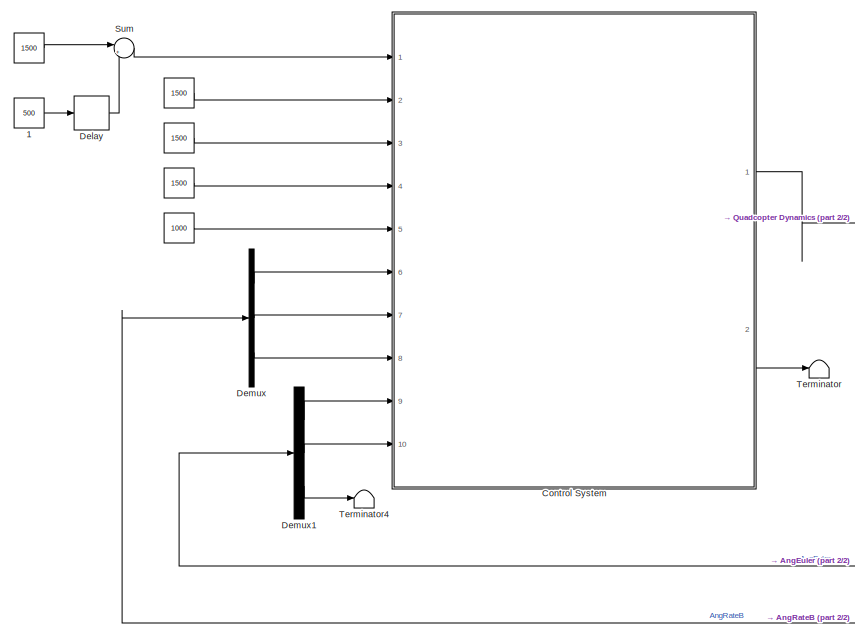
[diagram: root canvas - part 1/2, left side, full height]
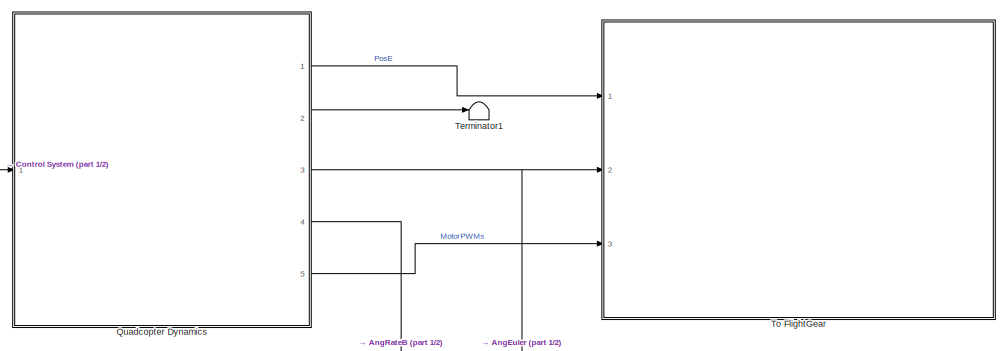
[diagram: root canvas - part 2/2, middle right region]
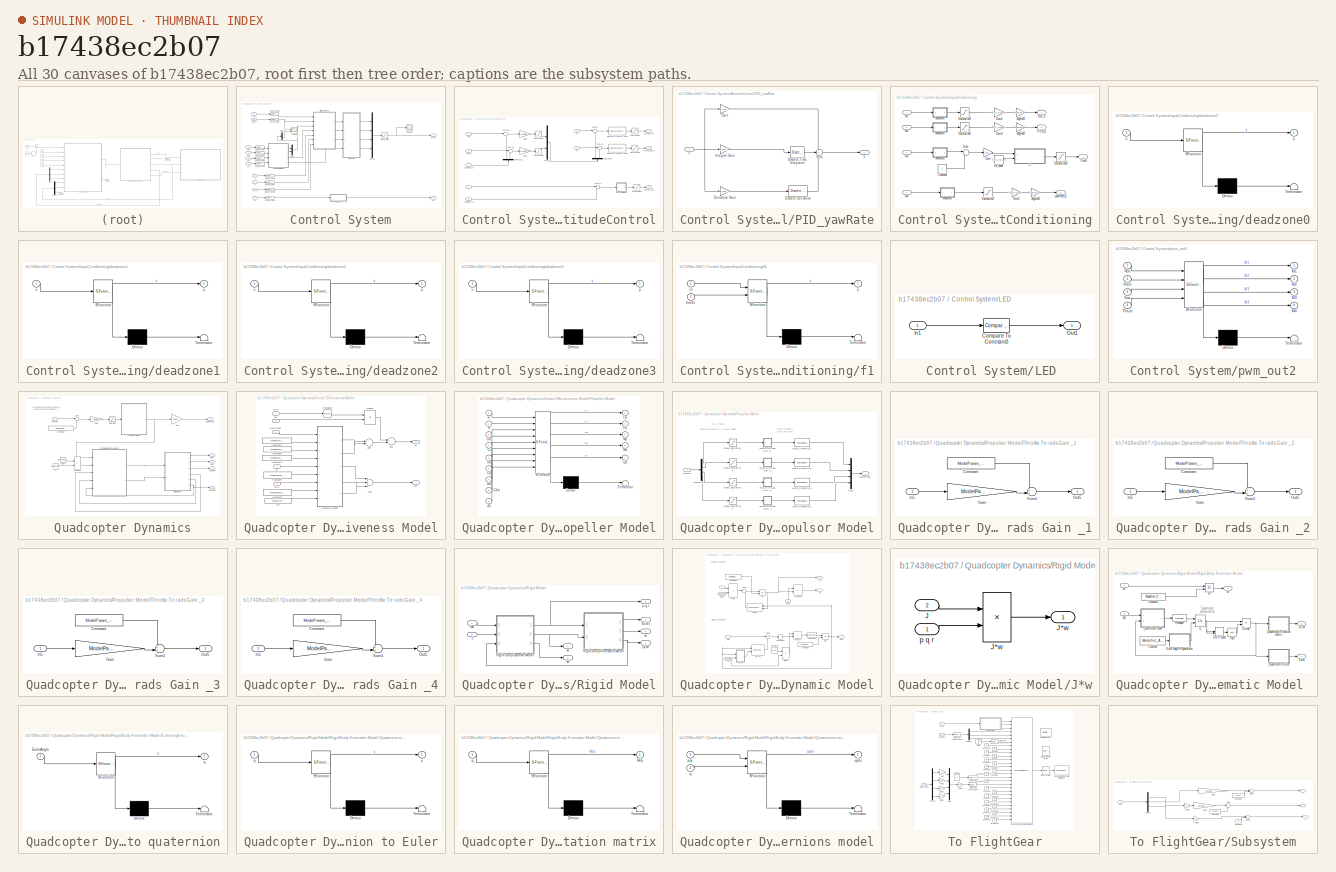
[diagram: thumbnail index - all 30 canvases of the model, root first then tree order]
MODEL slx_b17438ec2b07
KIND model
CONFIG AbsTol = auto
CONFIG EnableMultiTasking = off
CONFIG FixedStep = 0.001
CONFIG MaxStep = auto
CONFIG MinStep = auto
CONFIG RelTol = 1e-3
CONFIG SampleTimeConstraint = Unconstrained
CONFIG Solver = ode4
CONFIG SolverName = ode4
CONFIG StartTime = 0.0
CONFIG StopTime = 10
BLOCK [Constant]  
  OutDataTypeStr = uint16
  Value = 1000
BLOCK [Constant]   
  OutDataTypeStr = uint16
  Value = 1500
BLOCK [Constant]    
  OutDataTypeStr = uint16
  Value = 1500
BLOCK [Constant]       
  OutDataTypeStr = uint16
  Value = 1500
BLOCK [Constant]           
  OutDataTypeStr = uint16
  Value = 1500
BLOCK [Constant]   1
  OutDataTypeStr = uint16
  Value = 500
BLOCK [SubSystem] Control System
  Ports = [10, 2]
  RequestExecContextInheritance = off
  Variant = off
BLOCK [SubSystem] Control System/AttitudeControl
  Ports = [7, 3]
  RequestExecContextInheritance = off
  Variant = off
BLOCK [Demux] Control System/AttitudeControl/Demux12
  DisplayOption = bar
  Outputs = 2
  Ports = [1, 2]
BLOCK [Demux] Control System/AttitudeControl/Demux16
  DisplayOption = bar
  Outputs = 2
  Ports = [1, 2]
BLOCK [DiscreteTransferFcn] Control System/AttitudeControl/Discrete Transfer Fcn2
  Denominator = [1 -0.9997]
  InputPortMap = u0
  Numerator = [0.03248 -0.03223]
  Ports = [1, 1]
BLOCK [DiscreteTransferFcn] Control System/AttitudeControl/Discrete Transfer Fcn3
  Denominator = [1 -0.9997]
  InputPortMap = u0
  Numerator = [0.03248 -0.03223]
  Ports = [1, 1]
BLOCK [Gain] Control System/AttitudeControl/Gain1
  Gain = 5.0119
  OutDataTypeStr = Inherit: Inherit via internal rule
  ParamDataTypeStr = Inherit: Inherit via internal rule
  SaturateOnIntegerOverflow = off
BLOCK [Gain] Control System/AttitudeControl/Gain2
  Gain = 5.0119
  OutDataTypeStr = Inherit: Inherit via internal rule
  ParamDataTypeStr = Inherit: Inherit via internal rule
  SaturateOnIntegerOverflow = off
BLOCK [Mux] Control System/AttitudeControl/Mux22
  DisplayOption = bar
  Inputs = 2
  Ports = [2, 1]
BLOCK [SubSystem] Control System/AttitudeControl/PID_yawRate
  Ports = [1, 1]
  RequestExecContextInheritance = off
  Variant = off
BLOCK [Gain] Control System/AttitudeControl/PID_yawRate/Derivative Gain
  DisableCoverage = on
  Gain = Kd_YAW_AngleRate
  OutDataTypeStr = Inherit: Inherit via internal rule
  OutMax = 100
  OutMin = -100
  ParamDataTypeStr = Inherit: Inherit via internal rule
  ParamMax = 100
  ParamMin = -100
  SaturateOnIntegerOverflow = off
BLOCK [Reference] Control System/AttitudeControl/PID_yawRate/Discrete Derivative  REF=simulink/Discrete/Discrete Derivative
  Ports = [1, 1]
  SourceBlock = simulink/Discrete/Discrete Derivative
  SourceProductBaseCode = SL
  SourceProductName = Simulink
  SourceType = Discrete Derivative
BLOCK [DiscreteIntegrator] Control System/AttitudeControl/PID_yawRate/Discrete-Time Integrator
  ICPrevOutput = DiscIntNeverNeededParam
  ICPrevScaledInput = DiscIntNeverNeededParam
  InitialConditionSetting = State (most efficient)
  LimitOutput = on
  LowerSaturationLimit = Saturation_I_Y_Min
  Ports = [1, 1]
  SampleTime = -1
  UpperSaturationLimit = Saturation_I_Y_Max
BLOCK [Gain] Control System/AttitudeControl/PID_yawRate/Gain
  Gain = Kp_YAW_AngleRate
  OutDataTypeStr = Inherit: Inherit via internal rule
  ParamDataTypeStr = Inherit: Inherit via internal rule
  SaturateOnIntegerOverflow = off
BLOCK [Gain] Control System/AttitudeControl/PID_yawRate/Integral Gain
  DisableCoverage = on
  Gain = Ki_YAW_AngleRate
  OutDataTypeStr = Inherit: Inherit via internal rule
  ParamDataTypeStr = Inherit: Inherit via internal rule
  SaturateOnIntegerOverflow = off
BLOCK [Sum] Control System/AttitudeControl/PID_yawRate/Sum
  IconShape = round
  InputSameDT = off
  Inputs = +++
  OutDataTypeStr = Inherit: Inherit via internal rule
  Ports = [3, 1]
  SaturateOnIntegerOverflow = off
BLOCK [Inport] Control System/AttitudeControl/PID_yawRate/x
  IconDisplay = Port number
BLOCK [Outport] Control System/AttitudeControl/PID_yawRate/y
  IconDisplay = Port number
  InitialOutput = 0
BLOCK [Saturate] Control System/AttitudeControl/Saturation
  InputPortMap = u0
  LowerLimit = -1
  Ports = [1, 1]
  UpperLimit = 1
BLOCK [Saturate] Control System/AttitudeControl/Saturation1
  InputPortMap = u0
  LowerLimit = -1
  Ports = [1, 1]
  UpperLimit = 1
BLOCK [Saturate] Control System/AttitudeControl/Saturation2
  InputPortMap = u0
  Ports = [1, 1]
BLOCK [Saturate] Control System/AttitudeControl/Saturation3
  InputPortMap = u0
  LowerLimit = -MAX_CONTROL_ANGLE_RATE_PITCH
  Ports = [1, 1]
  UpperLimit = MAX_CONTROL_ANGLE_RATE_PITCH
BLOCK [Saturate] Control System/AttitudeControl/Saturation4
  InputPortMap = u0
  LowerLimit = -MAX_CONTROL_ANGLE_RATE_ROLL
  Ports = [1, 1]
  UpperLimit = MAX_CONTROL_ANGLE_RATE_ROLL
BLOCK [Sum] Control System/AttitudeControl/Sum17
  IconShape = round
  InputSameDT = off
  Inputs = |-+
  OutDataTypeStr = Inherit: Inherit via internal rule
  Ports = [2, 1]
  SaturateOnIntegerOverflow = off
BLOCK [Sum] Control System/AttitudeControl/Sum18
  IconShape = round
  InputSameDT = off
  Inputs = |-+
  OutDataTypeStr = Inherit: Inherit via internal rule
  Ports = [2, 1]
  SaturateOnIntegerOverflow = off
BLOCK [Sum] Control System/AttitudeControl/Sum19
  IconShape = round
  InputSameDT = off
  Inputs = |-+
  OutDataTypeStr = Inherit: Inherit via internal rule
  Ports = [2, 1]
  SaturateOnIntegerOverflow = off
BLOCK [Sum] Control System/AttitudeControl/Sum21
  IconShape = round
  InputSameDT = off
  Inputs = |-+
  OutDataTypeStr = Inherit: Inherit via internal rule
  Ports = [2, 1]
  SaturateOnIntegerOverflow = off
BLOCK [Sum] Control System/AttitudeControl/Sum22
  IconShape = round
  InputSameDT = off
  Inputs = |-+
  OutDataTypeStr = Inherit: Inherit via internal rule
  Ports = [2, 1]
  SaturateOnIntegerOverflow = off
BLOCK [Inport] Control System/AttitudeControl/p
  IconDisplay = Port number
  Port = 5
BLOCK [Inport] Control System/AttitudeControl/phi
  IconDisplay = Port number
BLOCK [Inport] Control System/AttitudeControl/q
  IconDisplay = Port number
  Port = 6
BLOCK [Inport] Control System/AttitudeControl/r
  IconDisplay = Port number
  Port = 7
BLOCK [Inport] Control System/AttitudeControl/roll_pitch_d
  IconDisplay = Port number
  Port = 3
BLOCK [Inport] Control System/AttitudeControl/theta
  IconDisplay = Port number
  Port = 2
BLOCK [Outport] Control System/AttitudeControl/torque_pitch
  IconDisplay = Port number
  Port = 2
BLOCK [Outport] Control System/AttitudeControl/torque_roll
  IconDisplay = Port number
BLOCK [Outport] Control System/AttitudeControl/torque_yaw
  IconDisplay = Port number
  Port = 3
BLOCK [Inport] Control System/AttitudeControl/yawRate_d
  IconDisplay = Port number
  Port = 4
BLOCK [DataTypeConversion] Control System/Conversion1
  OutDataTypeStr = double
  RndMeth = Floor
  SaturateOnIntegerOverflow = off
BLOCK [DataTypeConversion] Control System/Conversion10
  OutDataTypeStr = double
  RndMeth = Floor
  SaturateOnIntegerOverflow = off
BLOCK [DataTypeConversion] Control System/Conversion2
  OutDataTypeStr = double
  RndMeth = Floor
  SaturateOnIntegerOverflow = off
BLOCK [DataTypeConversion] Control System/Conversion3
  OutDataTypeStr = double
  RndMeth = Floor
  SaturateOnIntegerOverflow = off
BLOCK [DataTypeConversion] Control System/Conversion4
  OutDataTypeStr = double
  RndMeth = Floor
  SaturateOnIntegerOverflow = off
BLOCK [DataTypeConversion] Control System/Conversion5
  OutDataTypeStr = double
  RndMeth = Floor
  SaturateOnIntegerOverflow = off
BLOCK [DataTypeConversion] Control System/Conversion6
  OutDataTypeStr = double
  RndMeth = Floor
  SaturateOnIntegerOverflow = off
BLOCK [DataTypeConversion] Control System/Conversion7
  OutDataTypeStr = double
  RndMeth = Floor
  SaturateOnIntegerOverflow = off
BLOCK [DataTypeConversion] Control System/Conversion8
  OutDataTypeStr = double
  RndMeth = Floor
  SaturateOnIntegerOverflow = off
BLOCK [DataTypeConversion] Control System/Conversion9
  OutDataTypeStr = double
  RndMeth = Floor
  SaturateOnIntegerOverflow = off
BLOCK [Demux] Control System/Demux
  DisplayOption = bar
  Outputs = 2
  Ports = [1, 2]
BLOCK [SubSystem] Control System/InputConditioning
  Ports = [4, 4]
  RequestExecContextInheritance = off
  Variant = off
BLOCK [Constant] Control System/InputConditioning/Constant
BLOCK [Gain] Control System/InputConditioning/Gain
  Gain = 0.5
  OutDataTypeStr = Inherit: Inherit via internal rule
  ParamDataTypeStr = Inherit: Inherit via internal rule
  SaturateOnIntegerOverflow = off
BLOCK [Gain] Control System/InputConditioning/Gain1
  Gain = MAX_CONTROL_ANGLE_ROLL
  OutDataTypeStr = Inherit: Inherit via back propagation
  ParamDataTypeStr = Inherit: Inherit via internal rule
  SaturateOnIntegerOverflow = off
BLOCK [Gain] Control System/InputConditioning/Gain2
  Gain = MAX_CONTROL_ANGLE_RATE_Y
  OutDataTypeStr = Inherit: Inherit via internal rule
  ParamDataTypeStr = Inherit: Inherit via internal rule
  SaturateOnIntegerOverflow = off
BLOCK [Gain] Control System/InputConditioning/Gain3
  Gain = MAX_CONTROL_ANGLE_PITCH
  OutDataTypeStr = Inherit: Inherit via back propagation
  ParamDataTypeStr = Inherit: Inherit via internal rule
  SaturateOnIntegerOverflow = off
BLOCK [Outport] Control System/InputConditioning/Pitch_d
  IconDisplay = Port number
  Port = 2
BLOCK [Outport] Control System/InputConditioning/Roll_d
  IconDisplay = Port number
BLOCK [Saturate] Control System/InputConditioning/Saturation10
  InputPortMap = u0
  LowerLimit = 0
  Ports = [1, 1]
  UpperLimit = 1
BLOCK [Saturate] Control System/InputConditioning/Saturation7
  InputPortMap = u0
  LowerLimit = -1
  Ports = [1, 1]
  UpperLimit = 1
BLOCK [Saturate] Control System/InputConditioning/Saturation8
  InputPortMap = u0
  LowerLimit = -1
  Ports = [1, 1]
  UpperLimit = 1
BLOCK [Saturate] Control System/InputConditioning/Saturation9
  InputPortMap = u0
  LowerLimit = -1
  Ports = [1, 1]
  UpperLimit = 1
BLOCK [Sum] Control System/InputConditioning/Sum
  IconShape = round
  InputSameDT = off
  Inputs = |++
  OutDataTypeStr = Inherit: Inherit via internal rule
  Ports = [2, 1]
  SaturateOnIntegerOverflow = off
BLOCK [Outport] Control System/InputConditioning/Thrust
  IconDisplay = Port number
  Port = 4
BLOCK [Inport] Control System/InputConditioning/ch1 
  IconDisplay = Port number
BLOCK [Inport] Control System/InputConditioning/ch2
  IconDisplay = Port number
  Port = 2
BLOCK [Inport] Control System/InputConditioning/ch3
  IconDisplay = Port number
  Port = 3
BLOCK [Inport] Control System/InputConditioning/ch4
  IconDisplay = Port number
  Port = 4
BLOCK [SubSystem] Control System/InputConditioning/deadzone0
  ErrorFcn = Stateflow.Translate.translate
  PermitHierarchicalResolution = ExplicitOnly
  Ports = [1, 1]
  RequestExecContextInheritance = off
  SFBlockType = MATLAB Function
  TreatAsAtomicUnit = on
  Variant = off
BLOCK [Demux] Control System/InputConditioning/deadzone0/ Demux 
  Outputs = 1
  Ports = [1, 1]
BLOCK [S-Function] Control System/InputConditioning/deadzone0/ SFunction 
  EnableBusSupport = on
  FunctionName = sf_sfun
  PortCounts = [1 2]
  Ports = [1, 2]
  SFcnIsStateOwnerBlock = off
  SFunctionDeploymentMode = off
  Tag = Stateflow S-Function AttitudeControl_Sim 1
BLOCK [Terminator] Control System/InputConditioning/deadzone0/ Terminator 
BLOCK [Inport] Control System/InputConditioning/deadzone0/u
  IconDisplay = Port number
BLOCK [Outport] Control System/InputConditioning/deadzone0/y
  IconDisplay = Port number
BLOCK [SubSystem] Control System/InputConditioning/deadzone1
  ErrorFcn = Stateflow.Translate.translate
  PermitHierarchicalResolution = ExplicitOnly
  Ports = [1, 1]
  RequestExecContextInheritance = off
  SFBlockType = MATLAB Function
  TreatAsAtomicUnit = on
  Variant = off
BLOCK [Demux] Control System/InputConditioning/deadzone1/ Demux 
  Outputs = 1
  Ports = [1, 1]
BLOCK [S-Function] Control System/InputConditioning/deadzone1/ SFunction 
  EnableBusSupport = on
  FunctionName = sf_sfun
  PortCounts = [1 2]
  Ports = [1, 2]
  SFcnIsStateOwnerBlock = off
  SFunctionDeploymentMode = off
  Tag = Stateflow S-Function AttitudeControl_Sim 2
BLOCK [Terminator] Control System/InputConditioning/deadzone1/ Terminator 
BLOCK [Inport] Control System/InputConditioning/deadzone1/u
  IconDisplay = Port number
BLOCK [Outport] Control System/InputConditioning/deadzone1/y
  IconDisplay = Port number
BLOCK [SubSystem] Control System/InputConditioning/deadzone2
  ErrorFcn = Stateflow.Translate.translate
  PermitHierarchicalResolution = ExplicitOnly
  Ports = [1, 1]
  RequestExecContextInheritance = off
  SFBlockType = MATLAB Function
  TreatAsAtomicUnit = on
  Variant = off
BLOCK [Demux] Control System/InputConditioning/deadzone2/ Demux 
  Outputs = 1
  Ports = [1, 1]
BLOCK [S-Function] Control System/InputConditioning/deadzone2/ SFunction 
  EnableBusSupport = on
  FunctionName = sf_sfun
  PortCounts = [1 2]
  Ports = [1, 2]
  SFcnIsStateOwnerBlock = off
  SFunctionDeploymentMode = off
  Tag = Stateflow S-Function AttitudeControl_Sim 3
BLOCK [Terminator] Control System/InputConditioning/deadzone2/ Terminator 
BLOCK [Inport] Control System/InputConditioning/deadzone2/u
  IconDisplay = Port number
BLOCK [Outport] Control System/InputConditioning/deadzone2/y
  IconDisplay = Port number
BLOCK [SubSystem] Control System/InputConditioning/deadzone3
  ErrorFcn = Stateflow.Translate.translate
  PermitHierarchicalResolution = ExplicitOnly
  Ports = [1, 1]
  RequestExecContextInheritance = off
  SFBlockType = MATLAB Function
  TreatAsAtomicUnit = on
  Variant = off
BLOCK [Demux] Control System/InputConditioning/deadzone3/ Demux 
  Outputs = 1
  Ports = [1, 1]
BLOCK [S-Function] Control System/InputConditioning/deadzone3/ SFunction 
  EnableBusSupport = on
  FunctionName = sf_sfun
  PortCounts = [1 2]
  Ports = [1, 2]
  SFcnIsStateOwnerBlock = off
  SFunctionDeploymentMode = off
  Tag = Stateflow S-Function AttitudeControl_Sim 5
BLOCK [Terminator] Control System/InputConditioning/deadzone3/ Terminator 
BLOCK [Inport] Control System/InputConditioning/deadzone3/u
  IconDisplay = Port number
BLOCK [Outport] Control System/InputConditioning/deadzone3/y
  IconDisplay = Port number
BLOCK [Gain] Control System/InputConditioning/deg2rad1
  Gain = DEG2RAD
  OutDataTypeStr = Inherit: Inherit via internal rule
  ParamDataTypeStr = Inherit: Inherit via internal rule
  SaturateOnIntegerOverflow = off
BLOCK [Gain] Control System/InputConditioning/deg2rad2
  Gain = DEG2RAD
  OutDataTypeStr = Inherit: Inherit via internal rule
  ParamDataTypeStr = Inherit: Inherit via internal rule
  SaturateOnIntegerOverflow = off
BLOCK [Gain] Control System/InputConditioning/deg2rad3
  Gain = DEG2RAD
  OutDataTypeStr = Inherit: Inherit via internal rule
  ParamDataTypeStr = Inherit: Inherit via internal rule
  SaturateOnIntegerOverflow = off
BLOCK [SubSystem] Control System/InputConditioning/f1
  ErrorFcn = Stateflow.Translate.translate
  PermitHierarchicalResolution = ExplicitOnly
  Ports = [2, 1]
  RequestExecContextInheritance = off
  SFBlockType = MATLAB Function
  TreatAsAtomicUnit = on
  Variant = off
BLOCK [Demux] Control System/InputConditioning/f1/ Demux 
  Outputs = 1
  Ports = [1, 1]
BLOCK [S-Function] Control System/InputConditioning/f1/ SFunction 
  EnableBusSupport = on
  FunctionName = sf_sfun
  PortCounts = [2 2]
  Ports = [2, 2]
  SFcnIsStateOwnerBlock = off
  SFunctionDeploymentMode = off
  Tag = Stateflow S-Function AttitudeControl_Sim 32
BLOCK [Terminator] Control System/InputConditioning/f1/ Terminator 
BLOCK [Inport] Control System/InputConditioning/f1/hover
  IconDisplay = Port number
  Port = 2
BLOCK [Inport] Control System/InputConditioning/f1/in
  IconDisplay = Port number
BLOCK [Outport] Control System/InputConditioning/f1/y
  IconDisplay = Port number
BLOCK [Constant] Control System/InputConditioning/thr_hover 
  Value = THR_HOVER
BLOCK [Outport] Control System/InputConditioning/yawRate_d
  IconDisplay = Port number
  Port = 3
BLOCK [Outport] Control System/LED
  IconDisplay = Port number
  Port = 2
  PortDimensions = 1
  SamplingMode = Sample based
  SignalType = real
BLOCK [SubSystem] Control System/LED 
  Ports = [1, 1]
  RequestExecContextInheritance = off
  Variant = off
BLOCK [Reference] Control System/LED /Compare To Constant3  REF=simulink/Logic and Bit
Operations/Compare
To Constant
  Ports = [1, 1]
  SourceBlock = simulink/Logic and Bit\nOperations/Compare\nTo Constant
  SourceProductBaseCode = SL
  SourceProductName = Simulink
  SourceType = Compare To Constant
BLOCK [Inport] Control System/LED /In1
  IconDisplay = Port number
BLOCK [Outport] Control System/LED /Out1
  IconDisplay = Port number
BLOCK [Mux] Control System/Mux1
  DisplayOption = bar
  Inputs = 2
  Ports = [2, 1]
BLOCK [Mux] Control System/Mux12
  DisplayOption = bar
  Ports = [4, 1]
BLOCK [Saturate] Control System/Output_Limits1
  InputPortMap = u0
  LowerLimit = 1000
  Ports = [1, 1]
  UpperLimit = 2000
BLOCK [Outport] Control System/PWM
  IconDisplay = Port number
  SamplingMode = Sample based
  SignalType = real
BLOCK [Scope] Control System/Scope
  NumInputPorts = 2
  Ports = [2]
  ScopeSpecificationString = Simulink.scopes.TimeScopeBlockCfg('CurrentConfiguration', extmgr.ConfigurationSet(extmgr.Configuration('Core','General UI',true,'FigureColor',[1 1 1]),extmgr.Configuration('Core','Source UI',true),extmgr.Configuration('Sources','WiredSimulink',true,'DataLogging',true,'DataLoggingVariableName','pitchSim','DataLoggingSaveFormat','StructureWithTime'),extmgr.Configuration('Visuals','Time Domain',true,...<+1735ch>
BLOCK [Scope] Control System/Scope1
  NumInputPorts = 1
  Ports = [1]
  ScopeSpecificationString = Simulink.scopes.TimeScopeBlockCfg('CurrentConfiguration', extmgr.ConfigurationSet(extmgr.Configuration('Core','General UI',true,'FigureColor',[1 1 1]),extmgr.Configuration('Core','Source UI',true),extmgr.Configuration('Sources','WiredSimulink',true,'DataLoggingVariableName','ScopeData1'),extmgr.Configuration('Visuals','Time Domain',true,'SerializedDisplays',{struct('MinYLimReal','875.00000','MaxYL...<+1917ch>
BLOCK [Inport] Control System/ch1
  IconDisplay = Port number
  OutDataTypeStr = uint16
  PortDimensions = 1
  SamplingMode = Sample based
  SignalType = real
BLOCK [Inport] Control System/ch2
  IconDisplay = Port number
  OutDataTypeStr = uint16
  Port = 2
  PortDimensions = 1
  SamplingMode = Sample based
  SignalType = real
BLOCK [Inport] Control System/ch3
  IconDisplay = Port number
  OutDataTypeStr = uint16
  Port = 3
  PortDimensions = 1
  SamplingMode = Sample based
  SignalType = real
BLOCK [Inport] Control System/ch4
  IconDisplay = Port number
  OutDataTypeStr = uint16
  Port = 4
  PortDimensions = 1
  SamplingMode = Sample based
  SignalType = real
BLOCK [Inport] Control System/ch5
  IconDisplay = Port number
  Interpolate = off
  OutDataTypeStr = uint16
  Port = 5
  PortDimensions = 1
  SamplingMode = Sample based
  SignalType = real
BLOCK [Inport] Control System/p
  IconDisplay = Port number
  Port = 6
  PortDimensions = 1
  SamplingMode = Sample based
  SignalType = real
BLOCK [Inport] Control System/pitch
  IconDisplay = Port number
  Port = 10
  PortDimensions = 1
  SamplingMode = Sample based
  SignalType = real
BLOCK [SubSystem] Control System/pwm_out2
  ErrorFcn = Stateflow.Translate.translate
  PermitHierarchicalResolution = ExplicitOnly
  Ports = [4, 4]
  RequestExecContextInheritance = off
  SFBlockType = MATLAB Function
  SystemSampleTime = 0.004
  Variant = off
BLOCK [Demux] Control System/pwm_out2/ Demux 
  Outputs = 1
  Ports = [1, 1]
BLOCK [S-Function] Control System/pwm_out2/ SFunction 
  EnableBusSupport = on
  FunctionName = sf_sfun
  PortCounts = [4 5]
  Ports = [4, 5]
  SFcnIsStateOwnerBlock = off
  SFunctionDeploymentMode = off
  Tag = Stateflow S-Function AttitudeControl_Sim 14
BLOCK [Terminator] Control System/pwm_out2/ Terminator 
BLOCK [Outport] Control System/pwm_out2/M1
  IconDisplay = Port number
BLOCK [Outport] Control System/pwm_out2/M2
  IconDisplay = Port number
  Port = 2
BLOCK [Outport] Control System/pwm_out2/M3
  IconDisplay = Port number
  Port = 3
BLOCK [Outport] Control System/pwm_out2/M4
  IconDisplay = Port number
  Port = 4
BLOCK [Inport] Control System/pwm_out2/Pitch
  IconDisplay = Port number
  Port = 2
BLOCK [Inport] Control System/pwm_out2/Roll
  IconDisplay = Port number
BLOCK [Inport] Control System/pwm_out2/Thrust
  IconDisplay = Port number
  Port = 4
BLOCK [Inport] Control System/pwm_out2/Yaw
  IconDisplay = Port number
  Port = 3
BLOCK [Inport] Control System/q
  IconDisplay = Port number
  Port = 7
  PortDimensions = 1
  SamplingMode = Sample based
  SignalType = real
BLOCK [Inport] Control System/r
  IconDisplay = Port number
  Port = 8
  PortDimensions = 1
  SamplingMode = Sample based
  SignalType = real
BLOCK [Inport] Control System/roll
  IconDisplay = Port number
  Port = 9
  PortDimensions = 1
  SamplingMode = Sample based
  SignalType = real
BLOCK [Delay] Delay
  DelayLength = 1000
  InitialCondition = 0
  InputPortMap = u0
  Ports = [1, 1]
  SampleTime = 0.001
BLOCK [Demux] Demux
  DisplayOption = bar
  Outputs = 3
  Ports = [1, 3]
BLOCK [Demux] Demux1
  DisplayOption = bar
  Outputs = 3
  Ports = [1, 3]
BLOCK [SubSystem] Quadcopter Dynamics
  Ports = [1, 5]
  RequestExecContextInheritance = off
  Variant = off
BLOCK [Outport] Quadcopter Dynamics/AngEuler
  IconDisplay = Port number
  Port = 3
BLOCK [Outport] Quadcopter Dynamics/AngRateB
  IconDisplay = Port number
  Port = 4
BLOCK [Constant] Quadcopter Dynamics/Constant2
  Value = [1000,1000,1000,1000]
BLOCK [SubSystem] Quadcopter Dynamics/Control Effectiveness Model
  Ports = [5, 2]
  RequestExecContextInheritance = off
  Variant = off
BLOCK [Sum] Quadcopter Dynamics/Control Effectiveness Model/Add1
  InputSameDT = off
  Inputs = +++
  OutDataTypeStr = Inherit: Inherit via internal rule
  Ports = [3, 1]
  SaturateOnIntegerOverflow = off
BLOCK [Sum] Quadcopter Dynamics/Control Effectiveness Model/Add2
  InputSameDT = off
  OutDataTypeStr = Inherit: Inherit via internal rule
  Ports = [2, 1]
  SaturateOnIntegerOverflow = off
BLOCK [Sum] Quadcopter Dynamics/Control Effectiveness Model/Add7
  InputSameDT = off
  OutDataTypeStr = Inherit: Inherit via internal rule
  Ports = [2, 1]
  SaturateOnIntegerOverflow = off
BLOCK [Constant] Quadcopter Dynamics/Control Effectiveness Model/Constant1
  Value = ModelParam_uavCCm
BLOCK [Constant] Quadcopter Dynamics/Control Effectiveness Model/Constant3
  Value = ModelParam_rotorCt
BLOCK [Constant] Quadcopter Dynamics/Control Effectiveness Model/Constant4
  Value = ModelParam_rotorCm
BLOCK [Constant] Quadcopter Dynamics/Control Effectiveness Model/Constant5
  Value = ModelParam_uavR
BLOCK [Constant] Quadcopter Dynamics/Control Effectiveness Model/Constant7
  Value = ModelParam_uavCd
BLOCK [Inport] Quadcopter Dynamics/Control Effectiveness Model/DCM
  IconDisplay = Port number
  Port = 3
BLOCK [Outport] Quadcopter Dynamics/Control Effectiveness Model/Fb
  IconDisplay = Port number
  Port = 2
BLOCK [Constant] Quadcopter Dynamics/Control Effectiveness Model/Jrp
  Value = ModelParam_motorJm
BLOCK [Outport] Quadcopter Dynamics/Control Effectiveness Model/Mb
  IconDisplay = Port number
BLOCK [Inport] Quadcopter Dynamics/Control Effectiveness Model/MotorRads
  IconDisplay = Port number
BLOCK [Product] Quadcopter Dynamics/Control Effectiveness Model/Product
  InputSameDT = off
  Multiplication = Matrix(*)
  OutDataTypeStr = Inherit: Inherit via internal rule
  Ports = [2, 1]
  RndMeth = Floor
  SaturateOnIntegerOverflow = off
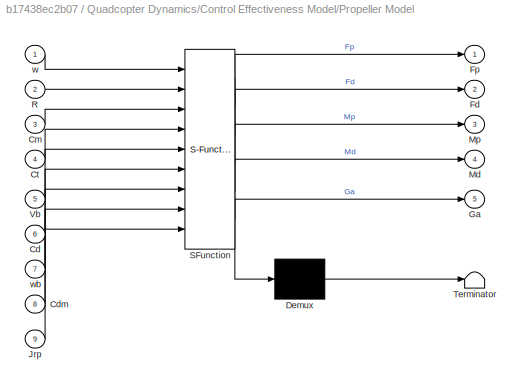
BLOCK [SubSystem] Quadcopter Dynamics/Control Effectiveness Model/Propeller Model
  ErrorFcn = Stateflow.Translate.translate
  PermitHierarchicalResolution = ExplicitOnly
  Ports = [9, 5]
  RequestExecContextInheritance = off
  SFBlockType = MATLAB Function
  TreatAsAtomicUnit = on
  Variant = off
BLOCK [Demux] Quadcopter Dynamics/Control Effectiveness Model/Propeller Model/ Demux 
  Outputs = 1
  Ports = [1, 1]
BLOCK [S-Function] Quadcopter Dynamics/Control Effectiveness Model/Propeller Model/ SFunction 
  EnableBusSupport = on
  FunctionName = sf_sfun
  PortCounts = [9 6]
  Ports = [9, 6]
  SFcnIsStateOwnerBlock = off
  SFunctionDeploymentMode = off
  Tag = Stateflow S-Function AttitudeControl_Sim 13
BLOCK [Terminator] Quadcopter Dynamics/Control Effectiveness Model/Propeller Model/ Terminator 
BLOCK [Inport] Quadcopter Dynamics/Control Effectiveness Model/Propeller Model/Cd
  IconDisplay = Port number
  Port = 6
BLOCK [Inport] Quadcopter Dynamics/Control Effectiveness Model/Propeller Model/Cdm
  IconDisplay = Port number
  Port = 8
BLOCK [Inport] Quadcopter Dynamics/Control Effectiveness Model/Propeller Model/Cm
  IconDisplay = Port number
  Port = 3
BLOCK [Inport] Quadcopter Dynamics/Control Effectiveness Model/Propeller Model/Ct
  IconDisplay = Port number
  Port = 4
BLOCK [Outport] Quadcopter Dynamics/Control Effectiveness Model/Propeller Model/Fd
  IconDisplay = Port number
  Port = 2
BLOCK [Outport] Quadcopter Dynamics/Control Effectiveness Model/Propeller Model/Fp
  IconDisplay = Port number
BLOCK [Outport] Quadcopter Dynamics/Control Effectiveness Model/Propeller Model/Ga
  IconDisplay = Port number
  Port = 5
BLOCK [Inport] Quadcopter Dynamics/Control Effectiveness Model/Propeller Model/Jrp
  IconDisplay = Port number
  Port = 9
BLOCK [Outport] Quadcopter Dynamics/Control Effectiveness Model/Propeller Model/Md
  IconDisplay = Port number
  Port = 4
BLOCK [Outport] Quadcopter Dynamics/Control Effectiveness Model/Propeller Model/Mp
  IconDisplay = Port number
  Port = 3
BLOCK [Inport] Quadcopter Dynamics/Control Effectiveness Model/Propeller Model/R
  IconDisplay = Port number
  Port = 2
BLOCK [Inport] Quadcopter Dynamics/Control Effectiveness Model/Propeller Model/Vb
  IconDisplay = Port number
  Port = 5
BLOCK [Inport] Quadcopter Dynamics/Control Effectiveness Model/Propeller Model/w
  IconDisplay = Port number
BLOCK [Inport] Quadcopter Dynamics/Control Effectiveness Model/Propeller Model/wb
  IconDisplay = Port number
  Port = 7
BLOCK [Math] Quadcopter Dynamics/Control Effectiveness Model/Transpose
  Operator = transpose
  Ports = [1, 1]
BLOCK [Inport] Quadcopter Dynamics/Control Effectiveness Model/Vb
  IconDisplay = Port number
  Port = 4
BLOCK [Inport] Quadcopter Dynamics/Control Effectiveness Model/mg
  IconDisplay = Port number
  Port = 2
BLOCK [Inport] Quadcopter Dynamics/Control Effectiveness Model/p.q,r
  IconDisplay = Port number
  Port = 5
BLOCK [Gain] Quadcopter Dynamics/Gain
  Gain = 30/pi
  OutDataTypeStr = Inherit: Inherit via internal rule
  ParamDataTypeStr = Inherit: Inherit via internal rule
  SaturateOnIntegerOverflow = off
BLOCK [Gain] Quadcopter Dynamics/Gain1
  Gain = 1/1000
  OutDataTypeStr = Inherit: Inherit via internal rule
  ParamDataTypeStr = Inherit: Inherit via internal rule
  SaturateOnIntegerOverflow = off
BLOCK [Outport] Quadcopter Dynamics/MotorRPMS
  IconDisplay = Port number
  Port = 5
BLOCK [Outport] Quadcopter Dynamics/PosE
  IconDisplay = Port number
BLOCK [Product] Quadcopter Dynamics/Product1
  InputSameDT = off
  OutDataTypeStr = Inherit: Inherit via internal rule
  Ports = [2, 1]
  RndMeth = Floor
  SaturateOnIntegerOverflow = off
BLOCK [SubSystem] Quadcopter Dynamics/Propulsor Model
  Ports = [1, 1]
  RequestExecContextInheritance = off
  Variant = off
BLOCK [Demux] Quadcopter Dynamics/Propulsor Model/Demux1
  DisplayOption = bar
  Ports = [1, 4]
BLOCK [Outport] Quadcopter Dynamics/Propulsor Model/MotorRads
  IconDisplay = Port number
BLOCK [StateSpace] Quadcopter Dynamics/Propulsor Model/Motor_Dynamics_1
  A = -1/ModelParam_motorT
  C = 1/ModelParam_motorT
  D = 0
  InitialCondition = ModelInit_Rads*ModelParam_motorT
  Ports = [1, 1]
BLOCK [StateSpace] Quadcopter Dynamics/Propulsor Model/Motor_Dynamics_2
  A = -1/ModelParam_motorT
  C = 1/ModelParam_motorT
  D = 0
  InitialCondition = ModelInit_Rads*ModelParam_motorT
  Ports = [1, 1]
BLOCK [StateSpace] Quadcopter Dynamics/Propulsor Model/Motor_Dynamics_3
  A = -1/ModelParam_motorT
  C = 1/ModelParam_motorT
  D = 0
  InitialCondition = ModelInit_Rads*ModelParam_motorT
  Ports = [1, 1]
BLOCK [StateSpace] Quadcopter Dynamics/Propulsor Model/Motor_Dynamics_4
  A = -1/ModelParam_motorT
  C = 1/ModelParam_motorT
  D = 0
  InitialCondition = ModelInit_Rads*ModelParam_motorT
  Ports = [1, 1]
BLOCK [Mux] Quadcopter Dynamics/Propulsor Model/Mux1
  DisplayOption = bar
  Ports = [4, 1]
BLOCK [Saturate] Quadcopter Dynamics/Propulsor Model/Signal_Saturation_1
  InputPortMap = u0
  LowerLimit = 0
  Ports = [1, 1]
  UpperLimit = 1
BLOCK [Saturate] Quadcopter Dynamics/Propulsor Model/Signal_Saturation_2
  InputPortMap = u0
  LowerLimit = 0
  Ports = [1, 1]
  UpperLimit = 1
BLOCK [Saturate] Quadcopter Dynamics/Propulsor Model/Signal_Saturation_3
  InputPortMap = u0
  LowerLimit = 0
  Ports = [1, 1]
  UpperLimit = 1
BLOCK [Saturate] Quadcopter Dynamics/Propulsor Model/Signal_Saturation_4
  InputPortMap = u0
  LowerLimit = 0
  Ports = [1, 1]
  UpperLimit = 1
BLOCK [SubSystem] Quadcopter Dynamics/Propulsor Model/Throttle To rads Gain _1
  Ports = [1, 1]
  RequestExecContextInheritance = off
  ShowPortLabels = none
  Variant = off
BLOCK [Constant] Quadcopter Dynamics/Propulsor Model/Throttle To rads Gain _1/Constant
  Value = ModelParam_motorWb
BLOCK [Gain] Quadcopter Dynamics/Propulsor Model/Throttle To rads Gain _1/Gain
  Gain = ModelParam_motorCr
  OutDataTypeStr = Inherit: Inherit via internal rule
  ParamDataTypeStr = Inherit: Inherit via internal rule
  SaturateOnIntegerOverflow = off
BLOCK [Inport] Quadcopter Dynamics/Propulsor Model/Throttle To rads Gain _1/In5
  IconDisplay = Port number
BLOCK [Outport] Quadcopter Dynamics/Propulsor Model/Throttle To rads Gain _1/Out5
  IconDisplay = Port number
BLOCK [Sum] Quadcopter Dynamics/Propulsor Model/Throttle To rads Gain _1/Sum1
  IconShape = round
  InputSameDT = off
  Inputs = ++|
  OutDataTypeStr = Inherit: Inherit via internal rule
  Ports = [2, 1]
  SaturateOnIntegerOverflow = off
BLOCK [SubSystem] Quadcopter Dynamics/Propulsor Model/Throttle To rads Gain _2
  Ports = [1, 1]
  RequestExecContextInheritance = off
  ShowPortLabels = none
  Variant = off
BLOCK [Constant] Quadcopter Dynamics/Propulsor Model/Throttle To rads Gain _2/Constant
  Value = ModelParam_motorWb
BLOCK [Gain] Quadcopter Dynamics/Propulsor Model/Throttle To rads Gain _2/Gain
  Gain = ModelParam_motorCr
  OutDataTypeStr = Inherit: Inherit via internal rule
  ParamDataTypeStr = Inherit: Inherit via internal rule
  SaturateOnIntegerOverflow = off
BLOCK [Inport] Quadcopter Dynamics/Propulsor Model/Throttle To rads Gain _2/In5
  IconDisplay = Port number
BLOCK [Outport] Quadcopter Dynamics/Propulsor Model/Throttle To rads Gain _2/Out5
  IconDisplay = Port number
BLOCK [Sum] Quadcopter Dynamics/Propulsor Model/Throttle To rads Gain _2/Sum1
  IconShape = round
  InputSameDT = off
  Inputs = ++|
  OutDataTypeStr = Inherit: Inherit via internal rule
  Ports = [2, 1]
  SaturateOnIntegerOverflow = off
BLOCK [SubSystem] Quadcopter Dynamics/Propulsor Model/Throttle To rads Gain _3
  Ports = [1, 1]
  RequestExecContextInheritance = off
  ShowPortLabels = none
  Variant = off
BLOCK [Constant] Quadcopter Dynamics/Propulsor Model/Throttle To rads Gain _3/Constant
  Value = ModelParam_motorWb
BLOCK [Gain] Quadcopter Dynamics/Propulsor Model/Throttle To rads Gain _3/Gain
  Gain = ModelParam_motorCr
  OutDataTypeStr = Inherit: Inherit via internal rule
  ParamDataTypeStr = Inherit: Inherit via internal rule
  SaturateOnIntegerOverflow = off
BLOCK [Inport] Quadcopter Dynamics/Propulsor Model/Throttle To rads Gain _3/In5
  IconDisplay = Port number
BLOCK [Outport] Quadcopter Dynamics/Propulsor Model/Throttle To rads Gain _3/Out5
  IconDisplay = Port number
BLOCK [Sum] Quadcopter Dynamics/Propulsor Model/Throttle To rads Gain _3/Sum1
  IconShape = round
  InputSameDT = off
  Inputs = ++|
  OutDataTypeStr = Inherit: Inherit via internal rule
  Ports = [2, 1]
  SaturateOnIntegerOverflow = off
BLOCK [SubSystem] Quadcopter Dynamics/Propulsor Model/Throttle To rads Gain _4
  Ports = [1, 1]
  RequestExecContextInheritance = off
  ShowPortLabels = none
  Variant = off
BLOCK [Constant] Quadcopter Dynamics/Propulsor Model/Throttle To rads Gain _4/Constant
  Value = ModelParam_motorWb
BLOCK [Gain] Quadcopter Dynamics/Propulsor Model/Throttle To rads Gain _4/Gain
  Gain = ModelParam_motorCr
  OutDataTypeStr = Inherit: Inherit via internal rule
  ParamDataTypeStr = Inherit: Inherit via internal rule
  SaturateOnIntegerOverflow = off
BLOCK [Inport] Quadcopter Dynamics/Propulsor Model/Throttle To rads Gain _4/In5
  IconDisplay = Port number
BLOCK [Outport] Quadcopter Dynamics/Propulsor Model/Throttle To rads Gain _4/Out5
  IconDisplay = Port number
BLOCK [Sum] Quadcopter Dynamics/Propulsor Model/Throttle To rads Gain _4/Sum1
  IconShape = round
  InputSameDT = off
  Inputs = ++|
  OutDataTypeStr = Inherit: Inherit via internal rule
  Ports = [2, 1]
  SaturateOnIntegerOverflow = off
BLOCK [Inport] Quadcopter Dynamics/Propulsor Model/inPWMs
  IconDisplay = Port number
BLOCK [SubSystem] Quadcopter Dynamics/Rigid Model
  Ports = [2, 6]
  RequestExecContextInheritance = off
  Variant = off
BLOCK [Outport] Quadcopter Dynamics/Rigid Model/DCM
  IconDisplay = Port number
  Port = 4
BLOCK [Outport] Quadcopter Dynamics/Rigid Model/Euler
  IconDisplay = Port number
  Port = 3
BLOCK [Inport] Quadcopter Dynamics/Rigid Model/Mb
  IconDisplay = Port number
BLOCK [SubSystem] Quadcopter Dynamics/Rigid Model/Rigid-Body Dynamic Model
  Ports = [3, 3]
  RequestExecContextInheritance = off
  Variant = off
BLOCK [Constant] Quadcopter Dynamics/Rigid Model/Rigid-Body Dynamic Model/ Mass 
  Value = ModelParam_uavMass
BLOCK [Constant] Quadcopter Dynamics/Rigid Model/Rigid-Body Dynamic Model/Constant
  Value = eye(3)
BLOCK [Constant] Quadcopter Dynamics/Rigid Model/Rigid-Body Dynamic Model/Constant1
  Value = ModelInit_RateB
BLOCK [Constant] Quadcopter Dynamics/Rigid Model/Rigid-Body Dynamic Model/Constant2
  Value = ModelInit_VelB
BLOCK [Inport] Quadcopter Dynamics/Rigid Model/Rigid-Body Dynamic Model/DCM
  IconDisplay = Port number
  Port = 3
BLOCK [Product] Quadcopter Dynamics/Rigid Model/Rigid-Body Dynamic Model/Divide
  InputSameDT = off
  Inputs = */
  Multiplication = Matrix(*)
  OutDataTypeStr = Inherit: Inherit via internal rule
  Ports = [2, 1]
  RndMeth = Floor
  SaturateOnIntegerOverflow = off
BLOCK [Constant] Quadcopter Dynamics/Rigid Model/Rigid-Body Dynamic Model/J 
  Value = ModelParam_uavJ
BLOCK [SubSystem] Quadcopter Dynamics/Rigid Model/Rigid-Body Dynamic Model/J*w
  Ports = [2, 1]
  RequestExecContextInheritance = off
  Variant = off
BLOCK [Inport] Quadcopter Dynamics/Rigid Model/Rigid-Body Dynamic Model/J*w/J
  IconDisplay = Port number
  Port = 2
BLOCK [Product] Quadcopter Dynamics/Rigid Model/Rigid-Body Dynamic Model/J*w/J*w
  InputSameDT = off
  Multiplication = Matrix(*)
  OutDataTypeStr = Inherit: Inherit via internal rule
  Ports = [2, 1]
  RndMeth = Floor
  SaturateOnIntegerOverflow = off
BLOCK [Outport] Quadcopter Dynamics/Rigid Model/Rigid-Body Dynamic Model/J*w/J*w 
  IconDisplay = Port number
BLOCK [Inport] Quadcopter Dynamics/Rigid Model/Rigid-Body Dynamic Model/J*w/p q r
  IconDisplay = Port number
BLOCK [Inport] Quadcopter Dynamics/Rigid Model/Rigid-Body Dynamic Model/Mb
  IconDisplay = Port number
BLOCK [Product] Quadcopter Dynamics/Rigid Model/Rigid-Body Dynamic Model/Product
  InputSameDT = off
  Multiplication = Matrix(*)
  OutDataTypeStr = Inherit: Inherit via internal rule
  Ports = [2, 1]
  RndMeth = Floor
  SaturateOnIntegerOverflow = off
BLOCK [Product] Quadcopter Dynamics/Rigid Model/Rigid-Body Dynamic Model/Product1
  InputSameDT = off
  Multiplication = Matrix(*)
  OutDataTypeStr = Inherit: Inherit via internal rule
  Ports = [2, 1]
  RndMeth = Floor
  SaturateOnIntegerOverflow = off
BLOCK [Reshape] Quadcopter Dynamics/Rigid Model/Rigid-Body Dynamic Model/Reshape
  OutputDimensionality = Customize
  OutputDimensions = [3,1]
  Ports = [1, 1]
BLOCK [Reshape] Quadcopter Dynamics/Rigid Model/Rigid-Body Dynamic Model/Reshape1
  OutputDimensionality = Column vector (2-D)
  Ports = [1, 1]
BLOCK [Sum] Quadcopter Dynamics/Rigid Model/Rigid-Body Dynamic Model/Sum1
  IconShape = round
  InputSameDT = off
  Inputs = |+-
  OutDataTypeStr = Inherit: Inherit via internal rule
  Ports = [2, 1]
  SaturateOnIntegerOverflow = off
BLOCK [Sum] Quadcopter Dynamics/Rigid Model/Rigid-Body Dynamic Model/Sum2
  IconShape = round
  InputSameDT = off
  Inputs = |+-
  OutDataTypeStr = Inherit: Inherit via internal rule
  Ports = [2, 1]
  SaturateOnIntegerOverflow = off
BLOCK [Product] Quadcopter Dynamics/Rigid Model/Rigid-Body Dynamic Model/a=f//m
  InputSameDT = off
  Inputs = */
  OutDataTypeStr = Inherit: Inherit via internal rule
  Ports = [2, 1]
  RndMeth = Floor
  SaturateOnIntegerOverflow = off
BLOCK [Inport] Quadcopter Dynamics/Rigid Model/Rigid-Body Dynamic Model/f
  IconDisplay = Port number
  Port = 2
BLOCK [Integrator] Quadcopter Dynamics/Rigid Model/Rigid-Body Dynamic Model/p,q,r
  InitialConditionSource = external
  Ports = [2, 1]
BLOCK [Outport] Quadcopter Dynamics/Rigid Model/Rigid-Body Dynamic Model/p,q,r 
  IconDisplay = Port number
BLOCK [Integrator] Quadcopter Dynamics/Rigid Model/Rigid-Body Dynamic Model/vb
  InitialConditionSource = external
  Ports = [2, 1]
BLOCK [Outport] Quadcopter Dynamics/Rigid Model/Rigid-Body Dynamic Model/vb 
  IconDisplay = Port number
  Port = 3
BLOCK [Outport] Quadcopter Dynamics/Rigid Model/Rigid-Body Dynamic Model/ve
  IconDisplay = Port number
  Port = 2
BLOCK [Reference] Quadcopter Dynamics/Rigid Model/Rigid-Body Dynamic Model/wx(Jw)  REF=sharedutil/3x3 Cross Product
  Ports = [2, 1]
  SourceBlock = sharedutil/3x3 Cross Product
  SourceProductBaseCode = AE
  SourceProductName = Aerospace Blockset
  SourceType = CrossProduct
BLOCK [Reference] Quadcopter Dynamics/Rigid Model/Rigid-Body Dynamic Model/wxVb  REF=sharedutil/3x3 Cross Product
  Ports = [2, 1]
  SourceBlock = sharedutil/3x3 Cross Product
  SourceProductBaseCode = AE
  SourceProductName = Aerospace Blockset
  SourceType = CrossProduct
BLOCK [SubSystem] Quadcopter Dynamics/Rigid Model/Rigid-Body Kinematic Model 
  Ports = [2, 3]
  RequestExecContextInheritance = off
  Variant = off
BLOCK [Constant] Quadcopter Dynamics/Rigid Model/Rigid-Body Kinematic Model /Constant
  Value = ModelInit_AngEuler
BLOCK [Constant] Quadcopter Dynamics/Rigid Model/Rigid-Body Kinematic Model /Constant1
  Value = ModelInit_PosE
BLOCK [Outport] Quadcopter Dynamics/Rigid Model/Rigid-Body Kinematic Model /DCM
  IconDisplay = Port number
  Port = 3
BLOCK [Product] Quadcopter Dynamics/Rigid Model/Rigid-Body Kinematic Model /Divide
  InputSameDT = off
  Inputs = */
  OutDataTypeStr = Inherit: Inherit via internal rule
  Ports = [2, 1]
  RndMeth = Floor
  SaturateOnIntegerOverflow = off
BLOCK [DotProduct] Quadcopter Dynamics/Rigid Model/Rigid-Body Kinematic Model /Dot Product
  OutDataTypeStr = Inherit: Inherit via internal rule
BLOCK [Outport] Quadcopter Dynamics/Rigid Model/Rigid-Body Kinematic Model /Euler
  IconDisplay = Port number
BLOCK [SubSystem] Quadcopter Dynamics/Rigid Model/Rigid-Body Kinematic Model /Euler angle to quaternion
  ErrorFcn = Stateflow.Translate.translate
  PermitHierarchicalResolution = ExplicitOnly
  Ports = [1, 1]
  RequestExecContextInheritance = off
  SFBlockType = MATLAB Function
  Variant = off
BLOCK [Demux] Quadcopter Dynamics/Rigid Model/Rigid-Body Kinematic Model /Euler angle to quaternion/ Demux 
  Outputs = 1
  Ports = [1, 1]
BLOCK [S-Function] Quadcopter Dynamics/Rigid Model/Rigid-Body Kinematic Model /Euler angle to quaternion/ SFunction 
  EnableBusSupport = on
  FunctionName = sf_sfun
  PortCounts = [1 2]
  Ports = [1, 2]
  SFcnIsStateOwnerBlock = off
  SFunctionDeploymentMode = off
  Tag = Stateflow S-Function AttitudeControl_Sim 11
BLOCK [Terminator] Quadcopter Dynamics/Rigid Model/Rigid-Body Kinematic Model /Euler angle to quaternion/ Terminator 
BLOCK [Inport] Quadcopter Dynamics/Rigid Model/Rigid-Body Kinematic Model /Euler angle to quaternion/EulerAngle
  IconDisplay = Port number
BLOCK [Outport] Quadcopter Dynamics/Rigid Model/Rigid-Body Kinematic Model /Euler angle to quaternion/q
  IconDisplay = Port number
BLOCK [SubSystem] Quadcopter Dynamics/Rigid Model/Rigid-Body Kinematic Model /Quaternion to Euler
  ErrorFcn = Stateflow.Translate.translate
  PermitHierarchicalResolution = ExplicitOnly
  Ports = [1, 1]
  RequestExecContextInheritance = off
  SFBlockType = MATLAB Function
  Variant = off
BLOCK [Demux] Quadcopter Dynamics/Rigid Model/Rigid-Body Kinematic Model /Quaternion to Euler/ Demux 
  Outputs = 1
  Ports = [1, 1]
BLOCK [S-Function] Quadcopter Dynamics/Rigid Model/Rigid-Body Kinematic Model /Quaternion to Euler/ SFunction 
  EnableBusSupport = on
  FunctionName = sf_sfun
  PortCounts = [1 2]
  Ports = [1, 2]
  SFcnIsStateOwnerBlock = off
  SFunctionDeploymentMode = off
  Tag = Stateflow S-Function AttitudeControl_Sim 9
BLOCK [Terminator] Quadcopter Dynamics/Rigid Model/Rigid-Body Kinematic Model /Quaternion to Euler/ Terminator 
BLOCK [Inport] Quadcopter Dynamics/Rigid Model/Rigid-Body Kinematic Model /Quaternion to Euler/q
  IconDisplay = Port number
BLOCK [Outport] Quadcopter Dynamics/Rigid Model/Rigid-Body Kinematic Model /Quaternion to Euler/y
  IconDisplay = Port number
BLOCK [SubSystem] Quadcopter Dynamics/Rigid Model/Rigid-Body Kinematic Model /Quaternion to rotation matrix
  ErrorFcn = Stateflow.Translate.translate
  PermitHierarchicalResolution = ExplicitOnly
  Ports = [1, 1]
  RequestExecContextInheritance = off
  SFBlockType = MATLAB Function
  Variant = off
BLOCK [Demux] Quadcopter Dynamics/Rigid Model/Rigid-Body Kinematic Model /Quaternion to rotation matrix/ Demux 
  Outputs = 1
  Ports = [1, 1]
BLOCK [S-Function] Quadcopter Dynamics/Rigid Model/Rigid-Body Kinematic Model /Quaternion to rotation matrix/ SFunction 
  EnableBusSupport = on
  FunctionName = sf_sfun
  PortCounts = [1 2]
  Ports = [1, 2]
  SFcnIsStateOwnerBlock = off
  SFunctionDeploymentMode = off
  Tag = Stateflow S-Function AttitudeControl_Sim 8
BLOCK [Terminator] Quadcopter Dynamics/Rigid Model/Rigid-Body Kinematic Model /Quaternion to rotation matrix/ Terminator 
BLOCK [Outport] Quadcopter Dynamics/Rigid Model/Rigid-Body Kinematic Model /Quaternion to rotation matrix/Reb
  IconDisplay = Port number
BLOCK [Inport] Quadcopter Dynamics/Rigid Model/Rigid-Body Kinematic Model /Quaternion to rotation matrix/q
  IconDisplay = Port number
BLOCK [SubSystem] Quadcopter Dynamics/Rigid Model/Rigid-Body Kinematic Model /Quaternions model
  ErrorFcn = Stateflow.Translate.translate
  PermitHierarchicalResolution = ExplicitOnly
  Ports = [2, 1]
  RequestExecContextInheritance = off
  SFBlockType = MATLAB Function
  TreatAsAtomicUnit = on
  Variant = off
BLOCK [Demux] Quadcopter Dynamics/Rigid Model/Rigid-Body Kinematic Model /Quaternions model/ Demux 
  Outputs = 1
  Ports = [1, 1]
BLOCK [S-Function] Quadcopter Dynamics/Rigid Model/Rigid-Body Kinematic Model /Quaternions model/ SFunction 
  EnableBusSupport = on
  FunctionName = sf_sfun
  PortCounts = [2 2]
  Ports = [2, 2]
  SFcnIsStateOwnerBlock = off
  SFunctionDeploymentMode = off
  Tag = Stateflow S-Function AttitudeControl_Sim 10
BLOCK [Terminator] Quadcopter Dynamics/Rigid Model/Rigid-Body Kinematic Model /Quaternions model/ Terminator 
BLOCK [Inport] Quadcopter Dynamics/Rigid Model/Rigid-Body Kinematic Model /Quaternions model/pqr
  IconDisplay = Port number
BLOCK [Inport] Quadcopter Dynamics/Rigid Model/Rigid-Body Kinematic Model /Quaternions model/q
  IconDisplay = Port number
  Port = 2
BLOCK [Outport] Quadcopter Dynamics/Rigid Model/Rigid-Body Kinematic Model /Quaternions model/qdot
  IconDisplay = Port number
BLOCK [Reshape] Quadcopter Dynamics/Rigid Model/Rigid-Body Kinematic Model /Reshape
  OutputDimensionality = Customize
  OutputDimensions = [4,1]
  Ports = [1, 1]
BLOCK [Sqrt] Quadcopter Dynamics/Rigid Model/Rigid-Body Kinematic Model /Sqrt
BLOCK [Inport] Quadcopter Dynamics/Rigid Model/Rigid-Body Kinematic Model /pqr
  IconDisplay = Port number
BLOCK [Integrator] Quadcopter Dynamics/Rigid Model/Rigid-Body Kinematic Model /q
  InitialConditionSource = external
  Ports = [2, 1]
BLOCK [Inport] Quadcopter Dynamics/Rigid Model/Rigid-Body Kinematic Model /ve
  IconDisplay = Port number
  Port = 2
BLOCK [Integrator] Quadcopter Dynamics/Rigid Model/Rigid-Body Kinematic Model /xe
  InitialConditionSource = external
  Ports = [2, 1]
BLOCK [Outport] Quadcopter Dynamics/Rigid Model/Rigid-Body Kinematic Model /xe 
  IconDisplay = Port number
  Port = 2
BLOCK [Inport] Quadcopter Dynamics/Rigid Model/f
  IconDisplay = Port number
  Port = 2
BLOCK [Outport] Quadcopter Dynamics/Rigid Model/p,q,r 
  IconDisplay = Port number
  Port = 6
BLOCK [Outport] Quadcopter Dynamics/Rigid Model/vb 
  IconDisplay = Port number
  Port = 5
BLOCK [Outport] Quadcopter Dynamics/Rigid Model/ve
  IconDisplay = Port number
  Port = 2
BLOCK [Outport] Quadcopter Dynamics/Rigid Model/xe 
  IconDisplay = Port number
BLOCK [Saturate] Quadcopter Dynamics/Saturation
  InputPortMap = u0
  LowerLimit = 0
  Ports = [1, 1]
  UpperLimit = 1
BLOCK [Sum] Quadcopter Dynamics/Sum
  IconShape = round
  InputSameDT = off
  Inputs = |+-
  OutDataTypeStr = Inherit: Inherit via internal rule
  Ports = [2, 1]
  SaturateOnIntegerOverflow = off
BLOCK [Outport] Quadcopter Dynamics/VelE
  IconDisplay = Port number
  Port = 2
BLOCK [Constant] Quadcopter Dynamics/g
  Value = [0,0,ModelParam_envGravityAcc]
BLOCK [Inport] Quadcopter Dynamics/inPWMs
  IconDisplay = Port number
BLOCK [Constant] Quadcopter Dynamics/mass
  Value = ModelParam_uavMass
BLOCK [Sum] Sum
  IconShape = round
  InputSameDT = off
  Inputs = |++
  OutDataTypeStr = Inherit: Inherit via internal rule
  Ports = [2, 1]
  SaturateOnIntegerOverflow = off
BLOCK [Terminator] Terminator
BLOCK [Terminator] Terminator1
BLOCK [Terminator] Terminator4
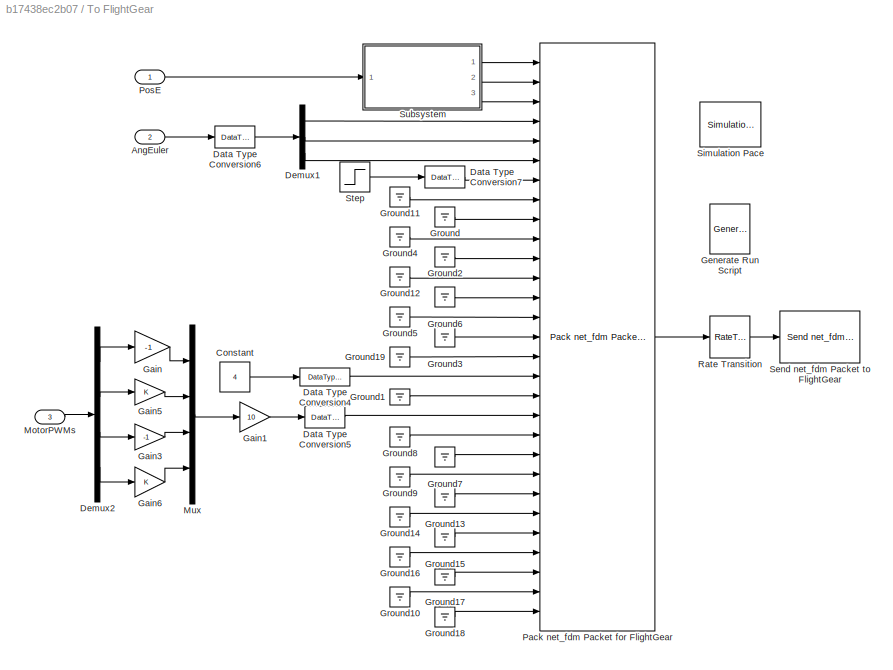
BLOCK [SubSystem] To FlightGear
  Ports = [3]
  RequestExecContextInheritance = off
  Variant = off
BLOCK [Inport] To FlightGear/AngEuler
  IconDisplay = Port number
  Port = 2
BLOCK [Constant] To FlightGear/Constant
  Value = 4
BLOCK [DataTypeConversion] To FlightGear/Data Type Conversion4
  OutDataTypeStr = uint32
  RndMeth = Floor
  SaturateOnIntegerOverflow = off
BLOCK [DataTypeConversion] To FlightGear/Data Type Conversion5
  OutDataTypeStr = single
  RndMeth = Floor
  SaturateOnIntegerOverflow = off
BLOCK [DataTypeConversion] To FlightGear/Data Type Conversion6
  OutDataTypeStr = single
  RndMeth = Floor
  SaturateOnIntegerOverflow = off
BLOCK [DataTypeConversion] To FlightGear/Data Type Conversion7
  OutDataTypeStr = single
  RndMeth = Floor
  SaturateOnIntegerOverflow = off
BLOCK [Demux] To FlightGear/Demux1
  DisplayOption = bar
  Outputs = 3
  Ports = [1, 3]
BLOCK [Demux] To FlightGear/Demux2
  DisplayOption = bar
  Ports = [1, 4]
BLOCK [Gain] To FlightGear/Gain
  Gain = -1
  OutDataTypeStr = Inherit: Inherit via internal rule
  ParamDataTypeStr = Inherit: Inherit via internal rule
  SaturateOnIntegerOverflow = off
BLOCK [Gain] To FlightGear/Gain1
  Gain = 10
  OutDataTypeStr = Inherit: Inherit via internal rule
  ParamDataTypeStr = Inherit: Inherit via internal rule
  SaturateOnIntegerOverflow = off
BLOCK [Gain] To FlightGear/Gain3
  Gain = -1
  OutDataTypeStr = Inherit: Inherit via internal rule
  ParamDataTypeStr = Inherit: Inherit via internal rule
  SaturateOnIntegerOverflow = off
BLOCK [Gain] To FlightGear/Gain5
  OutDataTypeStr = Inherit: Inherit via internal rule
  ParamDataTypeStr = Inherit: Inherit via internal rule
  SaturateOnIntegerOverflow = off
BLOCK [Gain] To FlightGear/Gain6
  OutDataTypeStr = Inherit: Inherit via internal rule
  ParamDataTypeStr = Inherit: Inherit via internal rule
  SaturateOnIntegerOverflow = off
BLOCK [Reference] To FlightGear/Generate Run Script  REF=aerolibfltsims/Generate
Run Script
  Ports = []
  SourceBlock = aerolibfltsims/Generate\nRun Script
  SourceProductBaseCode = AE
  SourceProductName = Aerospace Blockset
  SourceType = Generate FlightGear Run Script
BLOCK [Ground] To FlightGear/Ground
BLOCK [Ground] To FlightGear/Ground1
BLOCK [Ground] To FlightGear/Ground10
BLOCK [Ground] To FlightGear/Ground11
BLOCK [Ground] To FlightGear/Ground12
BLOCK [Ground] To FlightGear/Ground13
BLOCK [Ground] To FlightGear/Ground14
BLOCK [Ground] To FlightGear/Ground15
BLOCK [Ground] To FlightGear/Ground16
BLOCK [Ground] To FlightGear/Ground17
BLOCK [Ground] To FlightGear/Ground18
BLOCK [Ground] To FlightGear/Ground19
BLOCK [Ground] To FlightGear/Ground2
BLOCK [Ground] To FlightGear/Ground3
BLOCK [Ground] To FlightGear/Ground4
BLOCK [Ground] To FlightGear/Ground5
BLOCK [Ground] To FlightGear/Ground6
BLOCK [Ground] To FlightGear/Ground7
BLOCK [Ground] To FlightGear/Ground8
BLOCK [Ground] To FlightGear/Ground9
BLOCK [Inport] To FlightGear/MotorPWMs
  IconDisplay = Port number
  Port = 3
BLOCK [Mux] To FlightGear/Mux
  DisplayOption = bar
  Ports = [4, 1]
BLOCK [Reference] To FlightGear/Pack net_fdm Packet for FlightGear  REF=aerolibfltsims/Pack
net_fdm Packet
for FlightGear
  AttributesFormatString = Version Selected: %<FlightGearVersion>
  Ports = [29, 1]
  SourceBlock = aerolibfltsims/Pack\nnet_fdm Packet\nfor FlightGear
  SourceProductBaseCode = AE
  SourceProductName = Aerospace Blockset
  SourceType = FlightGearPackNetFdm
BLOCK [Inport] To FlightGear/PosE
  IconDisplay = Port number
BLOCK [RateTransition] To FlightGear/Rate Transition
BLOCK [Reference] To FlightGear/Send net_fdm Packet to FlightGear  REF=aerolibfltsims/Send
net_fdm Packet
to FlightGear
  Ports = [1]
  SourceBlock = aerolibfltsims/Send\nnet_fdm Packet\nto FlightGear
  SourceProductBaseCode = AE
  SourceProductName = Aerospace Blockset
  SourceType = FlightGearSendNetFdm
BLOCK [Reference] To FlightGear/Simulation Pace  REF=aerolibanimutils/Simulation Pace
  AttributesFormatString = %<SimulationPace> sec/sec
  Ports = []
  SourceBlock = aerolibanimutils/Simulation Pace
  SourceProductBaseCode = AE
  SourceProductName = Aerospace Blockset
  SourceType = Simulation Pace
BLOCK [Step] To FlightGear/Step
  SampleTime = 0
  Time = 0
BLOCK [SubSystem] To FlightGear/Subsystem
  Ports = [1, 3]
  RequestExecContextInheritance = off
  Variant = off
BLOCK [Constant] To FlightGear/Subsystem/Constant1
  Value = 5
  VectorParams1D = off
BLOCK [Constant] To FlightGear/Subsystem/Constant2
  Value = -2.1361
  VectorParams1D = off
BLOCK [Constant] To FlightGear/Subsystem/Constant3
  Value = 0.65673
  VectorParams1D = off
BLOCK [Demux] To FlightGear/Subsystem/Demux
  DisplayOption = bar
  Outputs = 3
  Ports = [1, 3]
BLOCK [Gain] To FlightGear/Subsystem/Gain1
  Gain = 10/earthRadius
  OutDataTypeStr = Inherit: Inherit via internal rule
  ParamDataTypeStr = Inherit: Inherit via internal rule
  SaturateOnIntegerOverflow = off
BLOCK [Gain] To FlightGear/Subsystem/Gain2
  Gain = 10/earthRadius
  OutDataTypeStr = Inherit: Inherit via internal rule
  ParamDataTypeStr = Inherit: Inherit via internal rule
  SaturateOnIntegerOverflow = off
BLOCK [Gain] To FlightGear/Subsystem/Gain4
  OutDataTypeStr = Inherit: Inherit via internal rule
  ParamDataTypeStr = Inherit: Inherit via internal rule
  SaturateOnIntegerOverflow = off
BLOCK [Gain] To FlightGear/Subsystem/Gain8
  Gain = -10
  OutDataTypeStr = Inherit: Inherit via internal rule
  ParamDataTypeStr = Inherit: Inherit via internal rule
  SaturateOnIntegerOverflow = off
BLOCK [Inport] To FlightGear/Subsystem/In1
  IconDisplay = Port number
BLOCK [Sum] To FlightGear/Subsystem/Sum10
  IconShape = round
  InputSameDT = off
  Inputs = |++
  OutDataTypeStr = Inherit: Inherit via internal rule
  Ports = [2, 1]
  SaturateOnIntegerOverflow = off
BLOCK [Sum] To FlightGear/Subsystem/Sum8
  IconShape = round
  InputSameDT = off
  Inputs = |++
  OutDataTypeStr = Inherit: Inherit via internal rule
  Ports = [2, 1]
  SaturateOnIntegerOverflow = off
BLOCK [Sum] To FlightGear/Subsystem/Sum9
  IconShape = round
  InputSameDT = off
  Inputs = |++
  OutDataTypeStr = Inherit: Inherit via internal rule
  Ports = [2, 1]
  SaturateOnIntegerOverflow = off
BLOCK [Outport] To FlightGear/Subsystem/h
  IconDisplay = Port number
  Port = 3
BLOCK [Outport] To FlightGear/Subsystem/l 
  IconDisplay = Port number
BLOCK [Outport] To FlightGear/Subsystem/u
  IconDisplay = Port number
  Port = 2
ANNOTATION Quadcopter Dynamics: The input is a PWM signal from 1000 to 2000, which needs to be normalized to 0~1.
ANNOTATION Quadcopter Dynamics/Propulsor Model: No. 1 motor Saturation Throttle --> Motor Speed
ANNOTATION Quadcopter Dynamics/Propulsor Model: Motor Dynamic w=1/(Ts+1)*wb
ANNOTATION Quadcopter Dynamics/Rigid Model/Rigid-Body Dynamic Model: attitude dynamic model
ANNOTATION Quadcopter Dynamics/Rigid Model/Rigid-Body Dynamic Model: position dynamic model
ANNOTATION Quadcopter Dynamics/Rigid Model/Rigid-Body Kinematic Model : Quaternions normalization
LINE           :1 -> Control System:4
LINE       :1 -> Control System:3
LINE    :1 -> Control System:2
LINE   1:1 -> Delay:1
LINE   :1 -> Sum:1
LINE  :1 -> Control System:5
LINE Control System/AttitudeControl/Demux12:1 -> Control System/AttitudeControl/Sum18:2
LINE Control System/AttitudeControl/Demux12:2 -> Control System/AttitudeControl/Sum19:2
LINE Control System/AttitudeControl/Demux16:1 -> Control System/AttitudeControl/Sum21:2
LINE Control System/AttitudeControl/Demux16:2 -> Control System/AttitudeControl/Sum22:2
LINE Control System/AttitudeControl/Discrete Transfer Fcn2:1 -> Control System/AttitudeControl/Saturation:1
LINE Control System/AttitudeControl/Discrete Transfer Fcn3:1 -> Control System/AttitudeControl/Saturation1:1
LINE Control System/AttitudeControl/Gain1:1 -> Control System/AttitudeControl/Saturation3:1
LINE Control System/AttitudeControl/Gain2:1 -> Control System/AttitudeControl/Saturation4:1
LINE Control System/AttitudeControl/Mux22:1 -> Control System/AttitudeControl/Demux16:1
LINE Control System/AttitudeControl/PID_yawRate/Derivative Gain:1 -> Control System/AttitudeControl/PID_yawRate/Discrete Derivative:1
LINE Control System/AttitudeControl/PID_yawRate/Discrete Derivative:1 -> Control System/AttitudeControl/PID_yawRate/Sum:3
LINE Control System/AttitudeControl/PID_yawRate/Discrete-Time Integrator:1 -> Control System/AttitudeControl/PID_yawRate/Sum:2
LINE Control System/AttitudeControl/PID_yawRate/Gain:1 -> Control System/AttitudeControl/PID_yawRate/Sum:1
LINE Control System/AttitudeControl/PID_yawRate/Integral Gain:1 -> Control System/AttitudeControl/PID_yawRate/Discrete-Time Integrator:1
LINE Control System/AttitudeControl/PID_yawRate/Sum:1 -> Control System/AttitudeControl/PID_yawRate/y:1
NET Control System/AttitudeControl/PID_yawRate/x:1 -> Control System/AttitudeControl/PID_yawRate/Derivative Gain:1, Control System/AttitudeControl/PID_yawRate/Gain:1, Control System/AttitudeControl/PID_yawRate/Integral Gain:1
LINE Control System/AttitudeControl/PID_yawRate:1 -> Control System/AttitudeControl/Saturation2:1
LINE Control System/AttitudeControl/Saturation1:1 -> Control System/AttitudeControl/torque_pitch:1
LINE Control System/AttitudeControl/Saturation2:1 -> Control System/AttitudeControl/torque_yaw:1
LINE Control System/AttitudeControl/Saturation3:1 -> Control System/AttitudeControl/Mux22:2
LINE Control System/AttitudeControl/Saturation4:1 -> Control System/AttitudeControl/Mux22:1
LINE Control System/AttitudeControl/Saturation:1 -> Control System/AttitudeControl/torque_roll:1
LINE Control System/AttitudeControl/Sum17:1 -> Control System/AttitudeControl/PID_yawRate:1
LINE Control System/AttitudeControl/Sum18:1 -> Control System/AttitudeControl/Gain2:1
LINE Control System/AttitudeControl/Sum19:1 -> Control System/AttitudeControl/Gain1:1
LINE Control System/AttitudeControl/Sum21:1 -> Control System/AttitudeControl/Discrete Transfer Fcn2:1
LINE Control System/AttitudeControl/Sum22:1 -> Control System/AttitudeControl/Discrete Transfer Fcn3:1
LINE Control System/AttitudeControl/p:1 -> Control System/AttitudeControl/Sum21:1
LINE Control System/AttitudeControl/phi:1 -> Control System/AttitudeControl/Sum18:1
LINE Control System/AttitudeControl/q:1 -> Control System/AttitudeControl/Sum22:1
LINE Control System/AttitudeControl/r:1 -> Control System/AttitudeControl/Sum17:1
LINE Control System/AttitudeControl/roll_pitch_d:1 -> Control System/AttitudeControl/Demux12:1
LINE Control System/AttitudeControl/theta:1 -> Control System/AttitudeControl/Sum19:1
LINE Control System/AttitudeControl/yawRate_d:1 -> Control System/AttitudeControl/Sum17:2
LINE Control System/AttitudeControl:1 -> Control System/pwm_out2:1
LINE Control System/AttitudeControl:2 -> Control System/pwm_out2:2
LINE Control System/AttitudeControl:3 -> Control System/pwm_out2:3
LINE Control System/Conversion10:1 -> Control System/AttitudeControl:7
LINE Control System/Conversion1:1 -> Control System/AttitudeControl:1
LINE Control System/Conversion2:1 -> Control System/InputConditioning:1
LINE Control System/Conversion3:1 -> Control System/InputConditioning:2
LINE Control System/Conversion4:1 -> Control System/InputConditioning:3
LINE Control System/Conversion5:1 -> Control System/InputConditioning:4
LINE Control System/Conversion6:1 -> Control System/LED :1
NET Control System/Conversion7:1 -> Control System/AttitudeControl:2, Control System/Scope:1
LINE Control System/Conversion8:1 -> Control System/AttitudeControl:5
LINE Control System/Conversion9:1 -> Control System/AttitudeControl:6
LINE Control System/Demux:2 -> Control System/Scope:2
LINE Control System/InputConditioning/Constant:1 -> Control System/InputConditioning/Sum:2
LINE Control System/InputConditioning/Gain1:1 -> Control System/InputConditioning/deg2rad1:1
LINE Control System/InputConditioning/Gain2:1 -> Control System/InputConditioning/deg2rad3:1
LINE Control System/InputConditioning/Gain3:1 -> Control System/InputConditioning/deg2rad2:1
LINE Control System/InputConditioning/Gain:1 -> Control System/InputConditioning/f1:1
LINE Control System/InputConditioning/Saturation10:1 -> Control System/InputConditioning/Thrust:1
LINE Control System/InputConditioning/Saturation7:1 -> Control System/InputConditioning/Gain2:1
LINE Control System/InputConditioning/Saturation8:1 -> Control System/InputConditioning/Gain3:1
LINE Control System/InputConditioning/Saturation9:1 -> Control System/InputConditioning/Gain1:1
LINE Control System/InputConditioning/Sum:1 -> Control System/InputConditioning/Gain:1
LINE Control System/InputConditioning/ch1 :1 -> Control System/InputConditioning/deadzone0:1
LINE Control System/InputConditioning/ch2:1 -> Control System/InputConditioning/deadzone1:1
LINE Control System/InputConditioning/ch3:1 -> Control System/InputConditioning/deadzone2:1
LINE Control System/InputConditioning/ch4:1 -> Control System/InputConditioning/deadzone3:1
LINE Control System/InputConditioning/deadzone0:1 -> Control System/InputConditioning/Saturation9:1
LINE Control System/InputConditioning/deadzone1:1 -> Control System/InputConditioning/Saturation8:1
LINE Control System/InputConditioning/deadzone2:1 -> Control System/InputConditioning/Sum:1
LINE Control System/InputConditioning/deadzone3:1 -> Control System/InputConditioning/Saturation7:1
LINE Control System/InputConditioning/deg2rad1:1 -> Control System/InputConditioning/Roll_d:1
LINE Control System/InputConditioning/deg2rad2:1 -> Control System/InputConditioning/Pitch_d:1
LINE Control System/InputConditioning/deg2rad3:1 -> Control System/InputConditioning/yawRate_d:1
LINE Control System/InputConditioning/f1:1 -> Control System/InputConditioning/Saturation10:1
LINE Control System/InputConditioning/thr_hover :1 -> Control System/InputConditioning/f1:2
LINE Control System/InputConditioning:1 -> Control System/Mux1:1
LINE Control System/InputConditioning:2 -> Control System/Mux1:2
LINE Control System/InputConditioning:3 -> Control System/AttitudeControl:4
LINE Control System/InputConditioning:4 -> Control System/pwm_out2:4
LINE Control System/LED /Compare To Constant3:1 -> Control System/LED /Out1:1
LINE Control System/LED /In1:1 -> Control System/LED /Compare To Constant3:1
LINE Control System/LED :1 -> Control System/LED:1
LINE Control System/Mux12:1 -> Control System/Output_Limits1:1
NET Control System/Mux1:1 -> Control System/AttitudeControl:3, Control System/Demux:1
NET Control System/Output_Limits1:1 -> Control System/PWM:1, Control System/Scope1:1
LINE Control System/ch1:1 -> Control System/Conversion2:1
LINE Control System/ch2:1 -> Control System/Conversion3:1
LINE Control System/ch3:1 -> Control System/Conversion4:1
LINE Control System/ch4:1 -> Control System/Conversion5:1
LINE Control System/ch5:1 -> Control System/Conversion6:1
LINE Control System/p:1 -> Control System/Conversion8:1
LINE Control System/pitch:1 -> Control System/Conversion7:1
LINE Control System/pwm_out2:1 -> Control System/Mux12:1
LINE Control System/pwm_out2:2 -> Control System/Mux12:2
LINE Control System/pwm_out2:3 -> Control System/Mux12:3
LINE Control System/pwm_out2:4 -> Control System/Mux12:4
LINE Control System/q:1 -> Control System/Conversion9:1
LINE Control System/r:1 -> Control System/Conversion10:1
LINE Control System/roll:1 -> Control System/Conversion1:1
LINE Control System:1 -> Quadcopter Dynamics:1
LINE Control System:2 -> Terminator:1
LINE Delay:1 -> Sum:2
LINE Demux1:1 -> Control System:9
LINE Demux1:2 -> Control System:10
LINE Demux1:3 -> Terminator4:1
LINE Demux:1 -> Control System:6
LINE Demux:2 -> Control System:7
LINE Demux:3 -> Control System:8
LINE Quadcopter Dynamics/Constant2:1 -> Quadcopter Dynamics/Sum:2
LINE Quadcopter Dynamics/Control Effectiveness Model/Add1:1 -> Quadcopter Dynamics/Control Effectiveness Model/Mb:1
LINE Quadcopter Dynamics/Control Effectiveness Model/Add2:1 -> Quadcopter Dynamics/Control Effectiveness Model/Fb:1
LINE Quadcopter Dynamics/Control Effectiveness Model/Add7:1 -> Quadcopter Dynamics/Control Effectiveness Model/Add2:2
LINE Quadcopter Dynamics/Control Effectiveness Model/Constant1:1 -> Quadcopter Dynamics/Control Effectiveness Model/Propeller Model:8
LINE Quadcopter Dynamics/Control Effectiveness Model/Constant3:1 -> Quadcopter Dynamics/Control Effectiveness Model/Propeller Model:4
LINE Quadcopter Dynamics/Control Effectiveness Model/Constant4:1 -> Quadcopter Dynamics/Control Effectiveness Model/Propeller Model:3
LINE Quadcopter Dynamics/Control Effectiveness Model/Constant5:1 -> Quadcopter Dynamics/Control Effectiveness Model/Propeller Model:2
LINE Quadcopter Dynamics/Control Effectiveness Model/Constant7:1 -> Quadcopter Dynamics/Control Effectiveness Model/Propeller Model:6
LINE Quadcopter Dynamics/Control Effectiveness Model/DCM:1 -> Quadcopter Dynamics/Control Effectiveness Model/Transpose:1
LINE Quadcopter Dynamics/Control Effectiveness Model/Jrp:1 -> Quadcopter Dynamics/Control Effectiveness Model/Propeller Model:9
LINE Quadcopter Dynamics/Control Effectiveness Model/MotorRads:1 -> Quadcopter Dynamics/Control Effectiveness Model/Propeller Model:1
LINE Quadcopter Dynamics/Control Effectiveness Model/Product:1 -> Quadcopter Dynamics/Control Effectiveness Model/Add2:1
LINE Quadcopter Dynamics/Control Effectiveness Model/Propeller Model:1 -> Quadcopter Dynamics/Control Effectiveness Model/Add7:1
LINE Quadcopter Dynamics/Control Effectiveness Model/Propeller Model:2 -> Quadcopter Dynamics/Control Effectiveness Model/Add7:2
LINE Quadcopter Dynamics/Control Effectiveness Model/Propeller Model:3 -> Quadcopter Dynamics/Control Effectiveness Model/Add1:1
LINE Quadcopter Dynamics/Control Effectiveness Model/Propeller Model:4 -> Quadcopter Dynamics/Control Effectiveness Model/Add1:2
LINE Quadcopter Dynamics/Control Effectiveness Model/Propeller Model:5 -> Quadcopter Dynamics/Control Effectiveness Model/Add1:3
LINE Quadcopter Dynamics/Control Effectiveness Model/Transpose:1 -> Quadcopter Dynamics/Control Effectiveness Model/Product:1
LINE Quadcopter Dynamics/Control Effectiveness Model/Vb:1 -> Quadcopter Dynamics/Control Effectiveness Model/Propeller Model:5
LINE Quadcopter Dynamics/Control Effectiveness Model/mg:1 -> Quadcopter Dynamics/Control Effectiveness Model/Product:2
LINE Quadcopter Dynamics/Control Effectiveness Model/p.q,r:1 -> Quadcopter Dynamics/Control Effectiveness Model/Propeller Model:7
LINE Quadcopter Dynamics/Control Effectiveness Model:1 -> Quadcopter Dynamics/Rigid Model:1
LINE Quadcopter Dynamics/Control Effectiveness Model:2 -> Quadcopter Dynamics/Rigid Model:2
LINE Quadcopter Dynamics/Gain1:1 -> Quadcopter Dynamics/Saturation:1
LINE Quadcopter Dynamics/Gain:1 -> Quadcopter Dynamics/MotorRPMS:1
LINE Quadcopter Dynamics/Product1:1 -> Quadcopter Dynamics/Control Effectiveness Model:2
LINE Quadcopter Dynamics/Propulsor Model/Demux1:1 -> Quadcopter Dynamics/Propulsor Model/Signal_Saturation_1:1
LINE Quadcopter Dynamics/Propulsor Model/Demux1:2 -> Quadcopter Dynamics/Propulsor Model/Signal_Saturation_2:1
LINE Quadcopter Dynamics/Propulsor Model/Demux1:3 -> Quadcopter Dynamics/Propulsor Model/Signal_Saturation_3:1
LINE Quadcopter Dynamics/Propulsor Model/Demux1:4 -> Quadcopter Dynamics/Propulsor Model/Signal_Saturation_4:1
LINE Quadcopter Dynamics/Propulsor Model/Motor_Dynamics_1:1 -> Quadcopter Dynamics/Propulsor Model/Mux1:1
LINE Quadcopter Dynamics/Propulsor Model/Motor_Dynamics_2:1 -> Quadcopter Dynamics/Propulsor Model/Mux1:2
LINE Quadcopter Dynamics/Propulsor Model/Motor_Dynamics_3:1 -> Quadcopter Dynamics/Propulsor Model/Mux1:3
LINE Quadcopter Dynamics/Propulsor Model/Motor_Dynamics_4:1 -> Quadcopter Dynamics/Propulsor Model/Mux1:4
LINE Quadcopter Dynamics/Propulsor Model/Mux1:1 -> Quadcopter Dynamics/Propulsor Model/MotorRads:1
LINE Quadcopter Dynamics/Propulsor Model/Signal_Saturation_1:1 -> Quadcopter Dynamics/Propulsor Model/Throttle To rads Gain _1:1
LINE Quadcopter Dynamics/Propulsor Model/Signal_Saturation_2:1 -> Quadcopter Dynamics/Propulsor Model/Throttle To rads Gain _2:1
LINE Quadcopter Dynamics/Propulsor Model/Signal_Saturation_3:1 -> Quadcopter Dynamics/Propulsor Model/Throttle To rads Gain _3:1
LINE Quadcopter Dynamics/Propulsor Model/Signal_Saturation_4:1 -> Quadcopter Dynamics/Propulsor Model/Throttle To rads Gain _4:1
LINE Quadcopter Dynamics/Propulsor Model/Throttle To rads Gain _1/Constant:1 -> Quadcopter Dynamics/Propulsor Model/Throttle To rads Gain _1/Sum1:1
LINE Quadcopter Dynamics/Propulsor Model/Throttle To rads Gain _1/Gain:1 -> Quadcopter Dynamics/Propulsor Model/Throttle To rads Gain _1/Sum1:2
LINE Quadcopter Dynamics/Propulsor Model/Throttle To rads Gain _1/In5:1 -> Quadcopter Dynamics/Propulsor Model/Throttle To rads Gain _1/Gain:1
LINE Quadcopter Dynamics/Propulsor Model/Throttle To rads Gain _1/Sum1:1 -> Quadcopter Dynamics/Propulsor Model/Throttle To rads Gain _1/Out5:1
LINE Quadcopter Dynamics/Propulsor Model/Throttle To rads Gain _1:1 -> Quadcopter Dynamics/Propulsor Model/Motor_Dynamics_1:1
LINE Quadcopter Dynamics/Propulsor Model/Throttle To rads Gain _2/Constant:1 -> Quadcopter Dynamics/Propulsor Model/Throttle To rads Gain _2/Sum1:1
LINE Quadcopter Dynamics/Propulsor Model/Throttle To rads Gain _2/Gain:1 -> Quadcopter Dynamics/Propulsor Model/Throttle To rads Gain _2/Sum1:2
LINE Quadcopter Dynamics/Propulsor Model/Throttle To rads Gain _2/In5:1 -> Quadcopter Dynamics/Propulsor Model/Throttle To rads Gain _2/Gain:1
LINE Quadcopter Dynamics/Propulsor Model/Throttle To rads Gain _2/Sum1:1 -> Quadcopter Dynamics/Propulsor Model/Throttle To rads Gain _2/Out5:1
LINE Quadcopter Dynamics/Propulsor Model/Throttle To rads Gain _2:1 -> Quadcopter Dynamics/Propulsor Model/Motor_Dynamics_2:1
LINE Quadcopter Dynamics/Propulsor Model/Throttle To rads Gain _3/Constant:1 -> Quadcopter Dynamics/Propulsor Model/Throttle To rads Gain _3/Sum1:1
LINE Quadcopter Dynamics/Propulsor Model/Throttle To rads Gain _3/Gain:1 -> Quadcopter Dynamics/Propulsor Model/Throttle To rads Gain _3/Sum1:2
LINE Quadcopter Dynamics/Propulsor Model/Throttle To rads Gain _3/In5:1 -> Quadcopter Dynamics/Propulsor Model/Throttle To rads Gain _3/Gain:1
LINE Quadcopter Dynamics/Propulsor Model/Throttle To rads Gain _3/Sum1:1 -> Quadcopter Dynamics/Propulsor Model/Throttle To rads Gain _3/Out5:1
LINE Quadcopter Dynamics/Propulsor Model/Throttle To rads Gain _3:1 -> Quadcopter Dynamics/Propulsor Model/Motor_Dynamics_3:1
LINE Quadcopter Dynamics/Propulsor Model/Throttle To rads Gain _4/Constant:1 -> Quadcopter Dynamics/Propulsor Model/Throttle To rads Gain _4/Sum1:1
LINE Quadcopter Dynamics/Propulsor Model/Throttle To rads Gain _4/Gain:1 -> Quadcopter Dynamics/Propulsor Model/Throttle To rads Gain _4/Sum1:2
LINE Quadcopter Dynamics/Propulsor Model/Throttle To rads Gain _4/In5:1 -> Quadcopter Dynamics/Propulsor Model/Throttle To rads Gain _4/Gain:1
LINE Quadcopter Dynamics/Propulsor Model/Throttle To rads Gain _4/Sum1:1 -> Quadcopter Dynamics/Propulsor Model/Throttle To rads Gain _4/Out5:1
LINE Quadcopter Dynamics/Propulsor Model/Throttle To rads Gain _4:1 -> Quadcopter Dynamics/Propulsor Model/Motor_Dynamics_4:1
LINE Quadcopter Dynamics/Propulsor Model/inPWMs:1 -> Quadcopter Dynamics/Propulsor Model/Demux1:1
NET Quadcopter Dynamics/Propulsor Model:1 -> Quadcopter Dynamics/Control Effectiveness Model:1, Quadcopter Dynamics/Gain:1
LINE Quadcopter Dynamics/Rigid Model/Mb:1 -> Quadcopter Dynamics/Rigid Model/Rigid-Body Dynamic Model:1
LINE Quadcopter Dynamics/Rigid Model/Rigid-Body Dynamic Model/ Mass :1 -> Quadcopter Dynamics/Rigid Model/Rigid-Body Dynamic Model/a=f//m:2
LINE Quadcopter Dynamics/Rigid Model/Rigid-Body Dynamic Model/Constant1:1 -> Quadcopter Dynamics/Rigid Model/Rigid-Body Dynamic Model/p,q,r:2
LINE Quadcopter Dynamics/Rigid Model/Rigid-Body Dynamic Model/Constant2:1 -> Quadcopter Dynamics/Rigid Model/Rigid-Body Dynamic Model/vb:2
LINE Quadcopter Dynamics/Rigid Model/Rigid-Body Dynamic Model/Constant:1 -> Quadcopter Dynamics/Rigid Model/Rigid-Body Dynamic Model/Divide:1
LINE Quadcopter Dynamics/Rigid Model/Rigid-Body Dynamic Model/DCM:1 -> Quadcopter Dynamics/Rigid Model/Rigid-Body Dynamic Model/Product1:1
LINE Quadcopter Dynamics/Rigid Model/Rigid-Body Dynamic Model/Divide:1 -> Quadcopter Dynamics/Rigid Model/Rigid-Body Dynamic Model/Product:1
NET Quadcopter Dynamics/Rigid Model/Rigid-Body Dynamic Model/J :1 -> Quadcopter Dynamics/Rigid Model/Rigid-Body Dynamic Model/Divide:2, Quadcopter Dynamics/Rigid Model/Rigid-Body Dynamic Model/J*w:2
LINE Quadcopter Dynamics/Rigid Model/Rigid-Body Dynamic Model/J*w/J*w:1 -> Quadcopter Dynamics/Rigid Model/Rigid-Body Dynamic Model/J*w/J*w :1
LINE Quadcopter Dynamics/Rigid Model/Rigid-Body Dynamic Model/J*w/J:1 -> Quadcopter Dynamics/Rigid Model/Rigid-Body Dynamic Model/J*w/J*w:1
LINE Quadcopter Dynamics/Rigid Model/Rigid-Body Dynamic Model/J*w/p q r:1 -> Quadcopter Dynamics/Rigid Model/Rigid-Body Dynamic Model/J*w/J*w:2
LINE Quadcopter Dynamics/Rigid Model/Rigid-Body Dynamic Model/J*w:1 -> Quadcopter Dynamics/Rigid Model/Rigid-Body Dynamic Model/wx(Jw):2
LINE Quadcopter Dynamics/Rigid Model/Rigid-Body Dynamic Model/Mb:1 -> Quadcopter Dynamics/Rigid Model/Rigid-Body Dynamic Model/Sum2:1
LINE Quadcopter Dynamics/Rigid Model/Rigid-Body Dynamic Model/Product1:1 -> Quadcopter Dynamics/Rigid Model/Rigid-Body Dynamic Model/ve:1
LINE Quadcopter Dynamics/Rigid Model/Rigid-Body Dynamic Model/Product:1 -> Quadcopter Dynamics/Rigid Model/Rigid-Body Dynamic Model/Reshape:1
LINE Quadcopter Dynamics/Rigid Model/Rigid-Body Dynamic Model/Reshape1:1 -> Quadcopter Dynamics/Rigid Model/Rigid-Body Dynamic Model/Product:2
LINE Quadcopter Dynamics/Rigid Model/Rigid-Body Dynamic Model/Reshape:1 -> Quadcopter Dynamics/Rigid Model/Rigid-Body Dynamic Model/p,q,r:1
LINE Quadcopter Dynamics/Rigid Model/Rigid-Body Dynamic Model/Sum1:1 -> Quadcopter Dynamics/Rigid Model/Rigid-Body Dynamic Model/vb:1
LINE Quadcopter Dynamics/Rigid Model/Rigid-Body Dynamic Model/Sum2:1 -> Quadcopter Dynamics/Rigid Model/Rigid-Body Dynamic Model/Reshape1:1
LINE Quadcopter Dynamics/Rigid Model/Rigid-Body Dynamic Model/a=f//m:1 -> Quadcopter Dynamics/Rigid Model/Rigid-Body Dynamic Model/Sum1:1
LINE Quadcopter Dynamics/Rigid Model/Rigid-Body Dynamic Model/f:1 -> Quadcopter Dynamics/Rigid Model/Rigid-Body Dynamic Model/a=f//m:1
NET Quadcopter Dynamics/Rigid Model/Rigid-Body Dynamic Model/p,q,r:1 -> Quadcopter Dynamics/Rigid Model/Rigid-Body Dynamic Model/J*w:1, Quadcopter Dynamics/Rigid Model/Rigid-Body Dynamic Model/p,q,r :1, Quadcopter Dynamics/Rigid Model/Rigid-Body Dynamic Model/wx(Jw):1, Quadcopter Dynamics/Rigid Model/Rigid-Body Dynamic Model/wxVb:1
NET Quadcopter Dynamics/Rigid Model/Rigid-Body Dynamic Model/vb:1 -> Quadcopter Dynamics/Rigid Model/Rigid-Body Dynamic Model/Product1:2, Quadcopter Dynamics/Rigid Model/Rigid-Body Dynamic Model/vb :1, Quadcopter Dynamics/Rigid Model/Rigid-Body Dynamic Model/wxVb:2
LINE Quadcopter Dynamics/Rigid Model/Rigid-Body Dynamic Model/wx(Jw):1 -> Quadcopter Dynamics/Rigid Model/Rigid-Body Dynamic Model/Sum2:2
LINE Quadcopter Dynamics/Rigid Model/Rigid-Body Dynamic Model/wxVb:1 -> Quadcopter Dynamics/Rigid Model/Rigid-Body Dynamic Model/Sum1:2
NET Quadcopter Dynamics/Rigid Model/Rigid-Body Dynamic Model:1 -> Quadcopter Dynamics/Rigid Model/Rigid-Body Kinematic Model :1, Quadcopter Dynamics/Rigid Model/p,q,r :1
NET Quadcopter Dynamics/Rigid Model/Rigid-Body Dynamic Model:2 -> Quadcopter Dynamics/Rigid Model/Rigid-Body Kinematic Model :2, Quadcopter Dynamics/Rigid Model/ve:1
LINE Quadcopter Dynamics/Rigid Model/Rigid-Body Dynamic Model:3 -> Quadcopter Dynamics/Rigid Model/vb :1
LINE Quadcopter Dynamics/Rigid Model/Rigid-Body Kinematic Model /Constant1:1 -> Quadcopter Dynamics/Rigid Model/Rigid-Body Kinematic Model /xe:2
LINE Quadcopter Dynamics/Rigid Model/Rigid-Body Kinematic Model /Constant:1 -> Quadcopter Dynamics/Rigid Model/Rigid-Body Kinematic Model /Euler angle to quaternion:1
NET Quadcopter Dynamics/Rigid Model/Rigid-Body Kinematic Model /Divide:1 -> Quadcopter Dynamics/Rigid Model/Rigid-Body Kinematic Model /Quaternion to Euler:1, Quadcopter Dynamics/Rigid Model/Rigid-Body Kinematic Model /Quaternion to rotation matrix:1, Quadcopter Dynamics/Rigid Model/Rigid-Body Kinematic Model /Quaternions model:2
LINE Quadcopter Dynamics/Rigid Model/Rigid-Body Kinematic Model /Dot Product:1 -> Quadcopter Dynamics/Rigid Model/Rigid-Body Kinematic Model /Sqrt:1
LINE Quadcopter Dynamics/Rigid Model/Rigid-Body Kinematic Model /Euler angle to quaternion:1 -> Quadcopter Dynamics/Rigid Model/Rigid-Body Kinematic Model /q:2
LINE Quadcopter Dynamics/Rigid Model/Rigid-Body Kinematic Model /Quaternion to Euler:1 -> Quadcopter Dynamics/Rigid Model/Rigid-Body Kinematic Model /Euler:1
LINE Quadcopter Dynamics/Rigid Model/Rigid-Body Kinematic Model /Quaternion to rotation matrix:1 -> Quadcopter Dynamics/Rigid Model/Rigid-Body Kinematic Model /DCM:1
LINE Quadcopter Dynamics/Rigid Model/Rigid-Body Kinematic Model /Quaternions model:1 -> Quadcopter Dynamics/Rigid Model/Rigid-Body Kinematic Model /Reshape:1
LINE Quadcopter Dynamics/Rigid Model/Rigid-Body Kinematic Model /Reshape:1 -> Quadcopter Dynamics/Rigid Model/Rigid-Body Kinematic Model /q:1
LINE Quadcopter Dynamics/Rigid Model/Rigid-Body Kinematic Model /Sqrt:1 -> Quadcopter Dynamics/Rigid Model/Rigid-Body Kinematic Model /Divide:2
LINE Quadcopter Dynamics/Rigid Model/Rigid-Body Kinematic Model /pqr:1 -> Quadcopter Dynamics/Rigid Model/Rigid-Body Kinematic Model /Quaternions model:1
NET Quadcopter Dynamics/Rigid Model/Rigid-Body Kinematic Model /q:1 -> Quadcopter Dynamics/Rigid Model/Rigid-Body Kinematic Model /Divide:1, Quadcopter Dynamics/Rigid Model/Rigid-Body Kinematic Model /Dot Product:1, Quadcopter Dynamics/Rigid Model/Rigid-Body Kinematic Model /Dot Product:2
LINE Quadcopter Dynamics/Rigid Model/Rigid-Body Kinematic Model /ve:1 -> Quadcopter Dynamics/Rigid Model/Rigid-Body Kinematic Model /xe:1
LINE Quadcopter Dynamics/Rigid Model/Rigid-Body Kinematic Model /xe:1 -> Quadcopter Dynamics/Rigid Model/Rigid-Body Kinematic Model /xe :1
LINE Quadcopter Dynamics/Rigid Model/Rigid-Body Kinematic Model :1 -> Quadcopter Dynamics/Rigid Model/Euler:1
LINE Quadcopter Dynamics/Rigid Model/Rigid-Body Kinematic Model :2 -> Quadcopter Dynamics/Rigid Model/xe :1
NET Quadcopter Dynamics/Rigid Model/Rigid-Body Kinematic Model :3 -> Quadcopter Dynamics/Rigid Model/DCM:1, Quadcopter Dynamics/Rigid Model/Rigid-Body Dynamic Model:3
LINE Quadcopter Dynamics/Rigid Model/f:1 -> Quadcopter Dynamics/Rigid Model/Rigid-Body Dynamic Model:2
LINE Quadcopter Dynamics/Rigid Model:1 -> Quadcopter Dynamics/PosE:1
LINE Quadcopter Dynamics/Rigid Model:2 -> Quadcopter Dynamics/VelE:1
LINE Quadcopter Dynamics/Rigid Model:3 -> Quadcopter Dynamics/AngEuler:1
LINE Quadcopter Dynamics/Rigid Model:4 -> Quadcopter Dynamics/Control Effectiveness Model:3
LINE Quadcopter Dynamics/Rigid Model:5 -> Quadcopter Dynamics/Control Effectiveness Model:4
NET Quadcopter Dynamics/Rigid Model:6 -> Quadcopter Dynamics/AngRateB:1, Quadcopter Dynamics/Control Effectiveness Model:5
LINE Quadcopter Dynamics/Saturation:1 -> Quadcopter Dynamics/Propulsor Model:1
LINE Quadcopter Dynamics/Sum:1 -> Quadcopter Dynamics/Gain1:1
LINE Quadcopter Dynamics/g:1 -> Quadcopter Dynamics/Product1:2
LINE Quadcopter Dynamics/inPWMs:1 -> Quadcopter Dynamics/Sum:1
LINE Quadcopter Dynamics/mass:1 -> Quadcopter Dynamics/Product1:1
LINE Quadcopter Dynamics:1 -> To FlightGear:1
LINE Quadcopter Dynamics:2 -> Terminator1:1
NET Quadcopter Dynamics:3 -> Demux1:1, To FlightGear:2
LINE Quadcopter Dynamics:4 -> Demux:1
LINE Quadcopter Dynamics:5 -> To FlightGear:3
LINE Sum:1 -> Control System:1
LINE To FlightGear/AngEuler:1 -> To FlightGear/Data Type Conversion6:1
LINE To FlightGear/Constant:1 -> To FlightGear/Data Type Conversion4:1
LINE To FlightGear/Data Type Conversion4:1 -> To FlightGear/Pack net_fdm Packet for FlightGear:17
LINE To FlightGear/Data Type Conversion5:1 -> To FlightGear/Pack net_fdm Packet for FlightGear:19
LINE To FlightGear/Data Type Conversion6:1 -> To FlightGear/Demux1:1
LINE To FlightGear/Data Type Conversion7:1 -> To FlightGear/Pack net_fdm Packet for FlightGear:7
LINE To FlightGear/Demux1:1 -> To FlightGear/Pack net_fdm Packet for FlightGear:4
LINE To FlightGear/Demux1:2 -> To FlightGear/Pack net_fdm Packet for FlightGear:5
LINE To FlightGear/Demux1:3 -> To FlightGear/Pack net_fdm Packet for FlightGear:6
LINE To FlightGear/Demux2:1 -> To FlightGear/Gain:1
LINE To FlightGear/Demux2:2 -> To FlightGear/Gain5:1
LINE To FlightGear/Demux2:3 -> To FlightGear/Gain3:1
LINE To FlightGear/Demux2:4 -> To FlightGear/Gain6:1
LINE To FlightGear/Gain1:1 -> To FlightGear/Data Type Conversion5:1
LINE To FlightGear/Gain3:1 -> To FlightGear/Mux:3
LINE To FlightGear/Gain5:1 -> To FlightGear/Mux:2
LINE To FlightGear/Gain6:1 -> To FlightGear/Mux:4
LINE To FlightGear/Gain:1 -> To FlightGear/Mux:1
LINE To FlightGear/Ground10:1 -> To FlightGear/Pack net_fdm Packet for FlightGear:28
LINE To FlightGear/Ground11:1 -> To FlightGear/Pack net_fdm Packet for FlightGear:8
LINE To FlightGear/Ground12:1 -> To FlightGear/Pack net_fdm Packet for FlightGear:12
LINE To FlightGear/Ground13:1 -> To FlightGear/Pack net_fdm Packet for FlightGear:23
LINE To FlightGear/Ground14:1 -> To FlightGear/Pack net_fdm Packet for FlightGear:24
LINE To FlightGear/Ground15:1 -> To FlightGear/Pack net_fdm Packet for FlightGear:25
LINE To FlightGear/Ground16:1 -> To FlightGear/Pack net_fdm Packet for FlightGear:26
LINE To FlightGear/Ground17:1 -> To FlightGear/Pack net_fdm Packet for FlightGear:27
LINE To FlightGear/Ground18:1 -> To FlightGear/Pack net_fdm Packet for FlightGear:29
LINE To FlightGear/Ground19:1 -> To FlightGear/Pack net_fdm Packet for FlightGear:16
LINE To FlightGear/Ground1:1 -> To FlightGear/Pack net_fdm Packet for FlightGear:18
LINE To FlightGear/Ground2:1 -> To FlightGear/Pack net_fdm Packet for FlightGear:11
LINE To FlightGear/Ground3:1 -> To FlightGear/Pack net_fdm Packet for FlightGear:15
LINE To FlightGear/Ground4:1 -> To FlightGear/Pack net_fdm Packet for FlightGear:10
LINE To FlightGear/Ground5:1 -> To FlightGear/Pack net_fdm Packet for FlightGear:14
LINE To FlightGear/Ground6:1 -> To FlightGear/Pack net_fdm Packet for FlightGear:13
LINE To FlightGear/Ground7:1 -> To FlightGear/Pack net_fdm Packet for FlightGear:21
LINE To FlightGear/Ground8:1 -> To FlightGear/Pack net_fdm Packet for FlightGear:20
LINE To FlightGear/Ground9:1 -> To FlightGear/Pack net_fdm Packet for FlightGear:22
LINE To FlightGear/Ground:1 -> To FlightGear/Pack net_fdm Packet for FlightGear:9
LINE To FlightGear/MotorPWMs:1 -> To FlightGear/Demux2:1
LINE To FlightGear/Mux:1 -> To FlightGear/Gain1:1
LINE To FlightGear/Pack net_fdm Packet for FlightGear:1 -> To FlightGear/Rate Transition:1
LINE To FlightGear/PosE:1 -> To FlightGear/Subsystem:1
LINE To FlightGear/Rate Transition:1 -> To FlightGear/Send net_fdm Packet to FlightGear:1
LINE To FlightGear/Step:1 -> To FlightGear/Data Type Conversion7:1
LINE To FlightGear/Subsystem/Constant1:1 -> To FlightGear/Subsystem/Sum10:2
LINE To FlightGear/Subsystem/Constant2:1 -> To FlightGear/Subsystem/Sum8:2
LINE To FlightGear/Subsystem/Constant3:1 -> To FlightGear/Subsystem/Sum9:2
LINE To FlightGear/Subsystem/Demux:1 -> To FlightGear/Subsystem/Gain4:1
LINE To FlightGear/Subsystem/Demux:2 -> To FlightGear/Subsystem/Gain1:1
LINE To FlightGear/Subsystem/Demux:3 -> To FlightGear/Subsystem/Gain8:1
LINE To FlightGear/Subsystem/Gain1:1 -> To FlightGear/Subsystem/Sum8:1
LINE To FlightGear/Subsystem/Gain2:1 -> To FlightGear/Subsystem/Sum9:1
LINE To FlightGear/Subsystem/Gain4:1 -> To FlightGear/Subsystem/Gain2:1
LINE To FlightGear/Subsystem/Gain8:1 -> To FlightGear/Subsystem/Sum10:1
LINE To FlightGear/Subsystem/In1:1 -> To FlightGear/Subsystem/Demux:1
LINE To FlightGear/Subsystem/Sum10:1 -> To FlightGear/Subsystem/h:1
LINE To FlightGear/Subsystem/Sum8:1 -> To FlightGear/Subsystem/l :1
LINE To FlightGear/Subsystem/Sum9:1 -> To FlightGear/Subsystem/u:1
LINE To FlightGear/Subsystem:1 -> To FlightGear/Pack net_fdm Packet for FlightGear:1
LINE To FlightGear/Subsystem:2 -> To FlightGear/Pack net_fdm Packet for FlightGear:2
LINE To FlightGear/Subsystem:3 -> To FlightGear/Pack net_fdm Packet for FlightGear:3
note: NET lines group one-source signal fan-out (src -> all destinations, sorted); 1:1 wires keep LINE
CHART Control System/InputConditioning/deadzone0 states=1 transitions=1
  STATE_LABEL 'eML_blk_kernel()'
  STATE_LABEL 'SCRIPT:\nfunction y = fcn(u)\n%Function description:\n%  Control the range of the remote control input from RCMin to RCMax, and set\n%  a dead zone with a dead zone size of ±deadZone,the output y is\n%  normalized to 0~1.You can get the RC calibration parameters in QGC.\nRCMin = 1100;\nRCMax = 1900;\nRCMid = (RCMin + RCMax)/2;\ndeadZoneRate = 0.05;\ndeadZone = deadZoneRate*(RCMax - RCMin);\nk = 1/(RCMax - RC...<+271ch>'  <repeated x4 — deduplicated; at blocks: deadzone0, deadzone1, deadzone2, deadzone3>
CHART Control System/InputConditioning/deadzone1 states=1 transitions=1
  STATE_LABEL 'eML_blk_kernel()'
CHART Control System/InputConditioning/deadzone2 states=1 transitions=1
  STATE_LABEL 'eML_blk_kernel()'
CHART Control System/InputConditioning/deadzone3 states=1 transitions=1
  STATE_LABEL 'eML_blk_kernel()'
CHART Quadcopter Dynamics/Rigid Model/Rigid-Body Kinematic Model /Quaternion to rotation matrix states=1 transitions=1
  STATE_LABEL 'eML_blk_kernel()'
  STATE_LABEL 'SCRIPT:\nfunction Reb = fcn(q)\n%Function description;\n%  The rotation matrix of the Aircraft-Body Coordinate Frame (ABCF) to the\n%  Earth-Fixed Coordinate Frame (EFCF) is obtained from the quaternions\nReb = [q(1)*q(1) + q(2)*q(2) - q(3)*q(3) - q(4)*q(4), 2*(q(2)*q(3) - q(1)*q(4)), 2*(q(2)*q(4) + q(1)*q(3))\n           2*(q(2)*q(3) + q(1)*q(4)), q(1)*q(1) - q(2)*q(2) + q(3)*q(3) - q(4)*q(4), 2*(q(3)*...<+135ch>'
CHART Quadcopter Dynamics/Rigid Model/Rigid-Body Kinematic Model /Quaternion to Euler states=1 transitions=1
  STATE_LABEL 'eML_blk_kernel()'
  STATE_LABEL 'SCRIPT:\nfunction y = fcn(q)\n %Function description:\n%  Quaternions to Euler\nphi = atan2(2*(q(1)*q(2) + q(3)*q(4)), (1 - 2*(q(2)*q(2) + q(3)*q(3))));\ntheta = asin(2*(q(1)*q(3) - q(2)*q(4)));\npsi = atan2(2*(q(1)*q(4) + q(2)*q(3)), (1 - 2*(q(3)*q(3) + q(4)*q(4))));\ny = [phi theta psi];\n'
CHART Quadcopter Dynamics/Rigid Model/Rigid-Body Kinematic Model /Quaternions model states=1 transitions=1
  STATE_LABEL 'eML_blk_kernel()'
  STATE_LABEL 'SCRIPT:\nfunction qdot = fcn(pqr, q)\n%Function description:\n%  Quaternions model\nqdot = 0.5*[0, -pqr(1), -pqr(2), -pqr(3); pqr(1), 0, pqr(3), -pqr(2); pqr(2), -pqr(3), 0, pqr(1); pqr(3), pqr(2), -pqr(1), 0]*q;\n'
CHART Quadcopter Dynamics/Rigid Model/Rigid-Body Kinematic Model /Euler angle to quaternion states=1 transitions=1
  STATE_LABEL 'eML_blk_kernel()'
  STATE_LABEL 'SCRIPT:\nfunction q = fcn(EulerAngle)\n%Function description:\n%  Get quaternions from Euler angle\nq0 =  cos(EulerAngle(1)/2)*cos(EulerAngle(2)/2)*cos(EulerAngle(3)/2) + sin(EulerAngle(1)/2)*sin((EulerAngle(2)/2))*sin((EulerAngle(3)/2));\nq1 = sin(EulerAngle(1)/2)*cos(EulerAngle(2)/2)*cos(EulerAngle(3)/2) - cos(EulerAngle(1)/2)*sin((EulerAngle(2)/2))*sin((EulerAngle(3)/2));\nq2 = cos(EulerAngle(1)/2)*s...<+270ch>'
CHART Quadcopter Dynamics/Control Effectiveness Model/Propeller Model states=1 transitions=1
  STATE_LABEL 'eML_blk_kernel()'
  STATE_LABEL 'SCRIPT:\nfunction [Fp, Fd, Mp, Md, Ga] = fcn(w, R, Cm, Ct, Vb, Cd,wb, Cdm, Jrp)\n %Function description:\n %  Obtain the force and torque acting on the body. The airframe of the\n %  quadrotor is as follows:\n %3↓   1↑\n %  \\ /\n %  / \\\n %2↑   4↓\n %↑ stands for counterclockwise and ↓stands for clockwise.\n %Input：\n %  w: motor speed，unit：rad/s\n %  R: body radius(m)\n %  Cm: torque coefficient\n %  Ct: thrus...<+953ch>'
CHART Control System/pwm_out2 states=1 transitions=1
  STATE_LABEL 'eML_blk_kernel()'
  STATE_LABEL 'SCRIPT:\nfunction [M1, M2, M3, M4] = motor_mixer(Roll, Pitch, Yaw, Thrust)\n%Function description:\n%  Control allocation. The quadrotor type is X-configuration,\n%  and the airframe is as follows:\n%3↓   1↑\n %  \\ /\n %  / \\\n %2↑   4↓\n%Input：\n%  Roll, Pitch, Yaw: attitude controller output.\n%  Thrust\n\nidle_PWM = 1000;\nscale = 1000;\n\nM1 = (Thrust - Roll + Pitch + Yaw) * scale + idle_PWM;\nM2 = (Thrust + R...<+152ch>'
CHART Control System/InputConditioning/f1 states=1 transitions=1
  STATE_LABEL 'eML_blk_kernel()'
  STATE_LABEL 'SCRIPT:\nfunction y = thr_curve(in, hover)\n%Function description:\n%  After this function, when the throttle is in the middle position, the output is hovering throttle hover\n%Input:\n%  in: Throttle normalized value, range (0~1)\n%  hover: Hovering throttle value\n%Output:\n%  Processed throttle value\nif in < 0.5\n\ty=2 * in * hover;\nelse\n\ty=hover + 2 * (in - 0.5) * (1.0 - hover);\nend\n\n\n'
